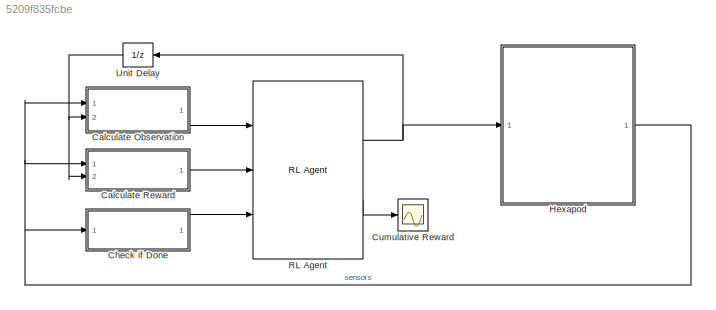
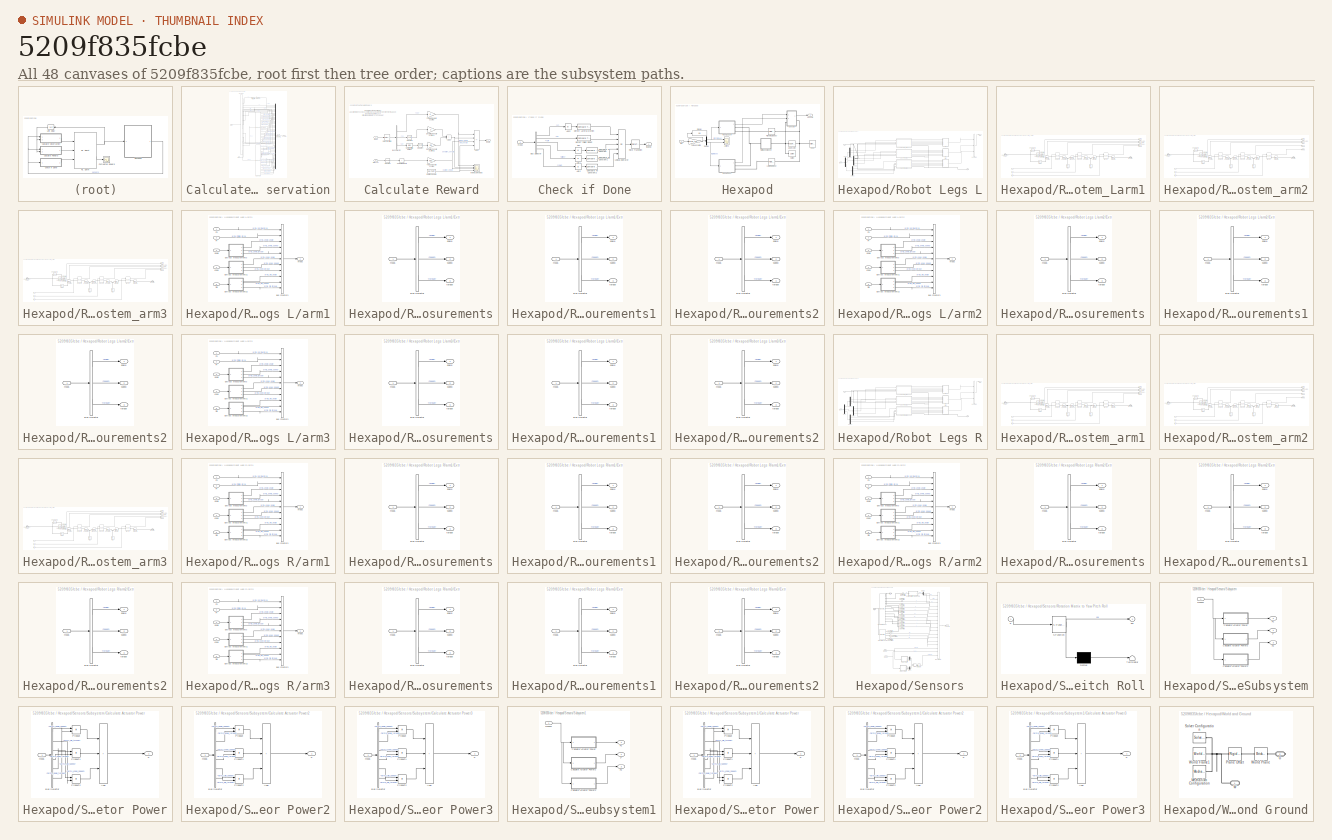
[diagram: thumbnail index - all 48 canvases of the model, root first then tree order]
MODEL slx_5209f835fcbe
KIND model
CONFIG AbsTol = auto
CONFIG EnableMultiTasking = off
CONFIG FixedStep = auto
CONFIG MaxStep = auto
CONFIG MinStep = auto
CONFIG RelTol = 1e-3
CONFIG SampleTimeConstraint = Unconstrained
CONFIG Solver = VariableStepAuto
CONFIG SolverName = VariableStepAuto
CONFIG StartTime = 0.0
CONFIG StopTime = 10.0
BLOCK [SubSystem] Calculate Observation
  Ports = [2, 1]
  RequestExecContextInheritance = off
BLOCK [BusSelector] Calculate Observation/Bus Selector
  OutputSignals = Y,Z,VX,VY,VZ,yaw,pitch,roll,wx,wy,wz,measL,measR
  Ports = [1, 13]
BLOCK [BusSelector] Calculate Observation/Bus Selector1
  OutputSignals = signal1.arm1_ankle_speed,signal1.arm1_ankle_torque,signal1.arm1_knee_speed,signal1.arm1_knee_torque,signal1.arm1_hip_speed,signal1.arm1_hip_torque,signal2.arm2_ankle_speed,signal2.arm2_ankle_torque,signal2.arm2_knee_speed,signal2.arm2_knee_torque,signal2.arm2_hip_speed,signal2.arm2_hip_torque,signal3.arm3_ankle_speed,signal3.arm3_ankle_torque,signal3.arm3_knee_speed,signal3.arm3_knee_torque,signal...<+40ch>
  Ports = [1, 18]
BLOCK [BusSelector] Calculate Observation/Bus Selector2
  OutputSignals = signal1.arm1_ankle_speed,signal1.arm1_ankle_torque,signal1.arm1_knee_speed,signal1.arm1_knee_torque,signal1.arm1_hip_speed,signal1.arm1_hip_torque,signal2.arm2_ankle_speed,signal2.arm2_ankle_torque,signal2.arm2_knee_speed,signal2.arm2_knee_torque,signal2.arm2_hip_speed,signal2.arm2_hip_torque,signal3.arm3_ankle_speed,signal3.arm3_ankle_torque,signal3.arm3_knee_speed,signal3.arm3_knee_torque,signal...<+40ch>
  Ports = [1, 18]
BLOCK [Mux] Calculate Observation/Mux
  DisplayOption = bar
  Inputs = 48
  Ports = [48, 1]
BLOCK [RateTransition] Calculate Observation/Rate Transition
BLOCK [Gain] Calculate Observation/Scale Height
  Gain = 1/0.05
BLOCK [Bias] Calculate Observation/Subtract Initial Height
  Bias = -init_height/100
  SaturateOnIntegerOverflow = off
BLOCK [Inport] Calculate Observation/meas
BLOCK [Outport] Calculate Observation/observation
  VectorParamsAs1DForOutWhenUnconnected = off
BLOCK [Inport] Calculate Observation/prevAct
  Port = 2
BLOCK [SubSystem] Calculate Reward
  Ports = [2, 1]
  RequestExecContextInheritance = off
BLOCK [Sum] Calculate Reward/Add1
  IconShape = rectangular
  Ports = [2, 1]
BLOCK [Sum] Calculate Reward/Add2
  IconShape = rectangular
  Inputs = +--+
  Ports = [4, 1]
BLOCK [BusSelector] Calculate Reward/Bus Selector
  OutputSignals = VX,Y,Z
  Ports = [1, 3]
BLOCK [Gain] Calculate Reward/Deviation Penalty Scaling Y
  Gain = 3
BLOCK [Gain] Calculate Reward/Deviation Penalty Scaling Z
  Gain = 50
BLOCK [Constant] Calculate Reward/Duration Reward
  Value = 25*Ts/Tf
BLOCK [Gain] Calculate Reward/Forward Reward Scaling
BLOCK [Scope] Calculate Reward/Individual Rewards
  Floating = off
  NumInputPorts = 4
  Ports = [4]
  ScopeSpecificationString = Simulink.scopes.TimeScopeBlockCfg('CurrentConfiguration', extmgr.ConfigurationSet(extmgr.Configuration('Core','General UI',true),extmgr.Configuration('Core','Source UI',true),extmgr.Configuration('Sources','WiredSimulink',true,'DataLoggingVariableName','ScopeData1'),extmgr.Configuration('Visuals','Time Domain',true,'SerializedDisplays',{struct('MinYLimReal','-0.10269','MaxYLimReal','0.92421','YLab...<+1411ch>
BLOCK [RateTransition] Calculate Reward/Rate Transition
  OutPortSampleTime = Ts
BLOCK [Math] Calculate Reward/Square2
  Operator = square
  Ports = [1, 1]
  SignedPower = on
BLOCK [Math] Calculate Reward/Square3
  Operator = square
  Ports = [1, 1]
  SignedPower = on
BLOCK [Math] Calculate Reward/Square4
  Operator = square
  Ports = [1, 1]
  SignedPower = on
BLOCK [Bias] Calculate Reward/Subtract Initial Height
  Bias = -init_height/100
  SaturateOnIntegerOverflow = off
BLOCK [Sum] Calculate Reward/Sum of Elements
  IconShape = rectangular
  Inputs = +
  Ports = [1, 1]
BLOCK [Gain] Calculate Reward/Torque Penalty Scaling
  Gain = 0.02
BLOCK [Inport] Calculate Reward/meas
BLOCK [Inport] Calculate Reward/prevAct
  Port = 2
BLOCK [Outport] Calculate Reward/reward
  VectorParamsAs1DForOutWhenUnconnected = off
BLOCK [SubSystem] Check if Done
  Ports = [1, 1]
  RequestExecContextInheritance = off
BLOCK [Abs] Check if Done/Abs
  SaturateOnIntegerOverflow = off
BLOCK [Abs] Check if Done/Abs1
  SaturateOnIntegerOverflow = off
BLOCK [Abs] Check if Done/Abs2
  SaturateOnIntegerOverflow = off
BLOCK [Abs] Check if Done/Abs3
  SaturateOnIntegerOverflow = off
BLOCK [BusSelector] Check if Done/Bus Selector
  OutputSignals = Y,Z,roll,pitch,yaw
  Ports = [1, 5]
BLOCK [Reference] Check if Done/Compare To Constant  REF=simulink/Logic and Bit
Operations/Compare
To Constant
  Ports = [1, 1]
  SourceBlock = simulink/Logic and Bit\nOperations/Compare\nTo Constant
  SourceProductBaseCode = SL
  SourceType = Compare To Constant
BLOCK [Reference] Check if Done/Compare To Constant1  REF=simulink/Logic and Bit
Operations/Compare
To Constant
  Ports = [1, 1]
  SourceBlock = simulink/Logic and Bit\nOperations/Compare\nTo Constant
  SourceProductBaseCode = SL
  SourceType = Compare To Constant
BLOCK [Reference] Check if Done/Compare To Constant2  REF=simulink/Logic and Bit
Operations/Compare
To Constant
  Ports = [1, 1]
  SourceBlock = simulink/Logic and Bit\nOperations/Compare\nTo Constant
  SourceProductBaseCode = SL
  SourceType = Compare To Constant
BLOCK [Reference] Check if Done/Detect Fallen Robot  REF=simulink/Logic and Bit
Operations/Compare
To Constant
  Ports = [1, 1]
  SourceBlock = simulink/Logic and Bit\nOperations/Compare\nTo Constant
  SourceProductBaseCode = SL
  SourceType = Compare To Constant
BLOCK [Reference] Check if Done/Detect Lateral Motion  REF=simulink/Logic and Bit
Operations/Compare
To Constant
  Ports = [1, 1]
  SourceBlock = simulink/Logic and Bit\nOperations/Compare\nTo Constant
  SourceProductBaseCode = SL
  SourceType = Compare To Constant
BLOCK [Logic] Check if Done/Logical Operator
  AllPortsSameDT = off
  Inputs = 5
  Operator = OR
  OutDataTypeStr = boolean
  Ports = [5, 1]
BLOCK [RateTransition] Check if Done/Rate Transition
BLOCK [Outport] Check if Done/isdone
  VectorParamsAs1DForOutWhenUnconnected = off
BLOCK [Inport] Check if Done/meas
BLOCK [Scope] Cumulative Reward
  Floating = off
  NumInputPorts = 1
  Ports = [1]
  ScopeSpecificationString = Simulink.scopes.TimeScopeBlockCfg('CurrentConfiguration', extmgr.ConfigurationSet(extmgr.Configuration('Core','General UI',true),extmgr.Configuration('Core','Source UI',true),extmgr.Configuration('Sources','WiredSimulink',true,'DataLoggingVariableName','ScopeData1'),extmgr.Configuration('Visuals','Time Domain',true,'SerializedDisplays',{struct('MinYLimReal','-21.13573','MaxYLimReal','190.22158','Y...<+1433ch>
BLOCK [SubSystem] Hexapod
  Ports = [1, 1]
  RequestExecContextInheritance = off
BLOCK [Reference] Hexapod/6-DOF Joint  REF=sm_lib/Joints/6-DOF Joint
  Ports = [0, 0, 0, 0, 0, 1, 1]
  SourceBlock = sm_lib/Joints/6-DOF Joint
  SourceProductBaseCode = MS
  SourceType = 6-DOF Joint
BLOCK [Scope] Hexapod/Actions
  Floating = off
  NumInputPorts = 2
  Ports = [2]
  ScopeSpecificationString = Simulink.scopes.TimeScopeBlockCfg('CurrentConfiguration', extmgr.ConfigurationSet(extmgr.Configuration('Core','General UI',true),extmgr.Configuration('Core','Source UI',true),extmgr.Configuration('Sources','WiredSimulink',true,'DataLoggingVariableName','ScopeData1'),extmgr.Configuration('Visuals','Time Domain',true,'SerializedDisplays',{struct('MinYLimReal','-3.75','MaxYLimReal','3.75','YLabelReal...<+2095ch>
BLOCK [Demux] Hexapod/Demux
  Outputs = 2
  Ports = [1, 2]
BLOCK [Display] Hexapod/Display
  Decimation = 1
  Ports = [1]
BLOCK [Reference] Hexapod/Left Arm1 to Body  REF=sm_lib/Frames and
Transforms/Rigid
Transform
  Ports = [0, 0, 0, 0, 0, 1, 1]
  SourceBlock = sm_lib/Frames and\nTransforms/Rigid\nTransform
  SourceProductBaseCode = MS
  SourceType = Rigid\nTransform
BLOCK [Reference] Hexapod/Right Arm1 to Body  REF=sm_lib/Frames and
Transforms/Rigid
Transform
  Ports = [0, 0, 0, 0, 0, 1, 1]
  SourceBlock = sm_lib/Frames and\nTransforms/Rigid\nTransform
  SourceProductBaseCode = MS
  SourceType = Rigid\nTransform
BLOCK [SubSystem] Hexapod/Robot Legs L
  Ports = [1, 1, 0, 0, 0, 0, 2]
  RequestExecContextInheritance = off
BLOCK [BusCreator] Hexapod/Robot Legs L/Bus Creator3
  DisplayOption = bar
  InheritFromInputs = on
  Inputs = 3
  Ports = [3, 1]
BLOCK [Demux] Hexapod/Robot Legs L/Demux
  Outputs = 3
  Ports = [1, 3]
BLOCK [Demux] Hexapod/Robot Legs L/Demux1
  Outputs = 3
  Ports = [1, 3]
BLOCK [Demux] Hexapod/Robot Legs L/Demux2
  Outputs = 3
  Ports = [1, 3]
BLOCK [Demux] Hexapod/Robot Legs L/Demux3
  Outputs = 3
  Ports = [1, 3]
BLOCK [PMIOPort] Hexapod/Robot Legs L/G
  Side = Right
BLOCK [PMIOPort] Hexapod/Robot Legs L/H
  Port = 2
  Side = Right
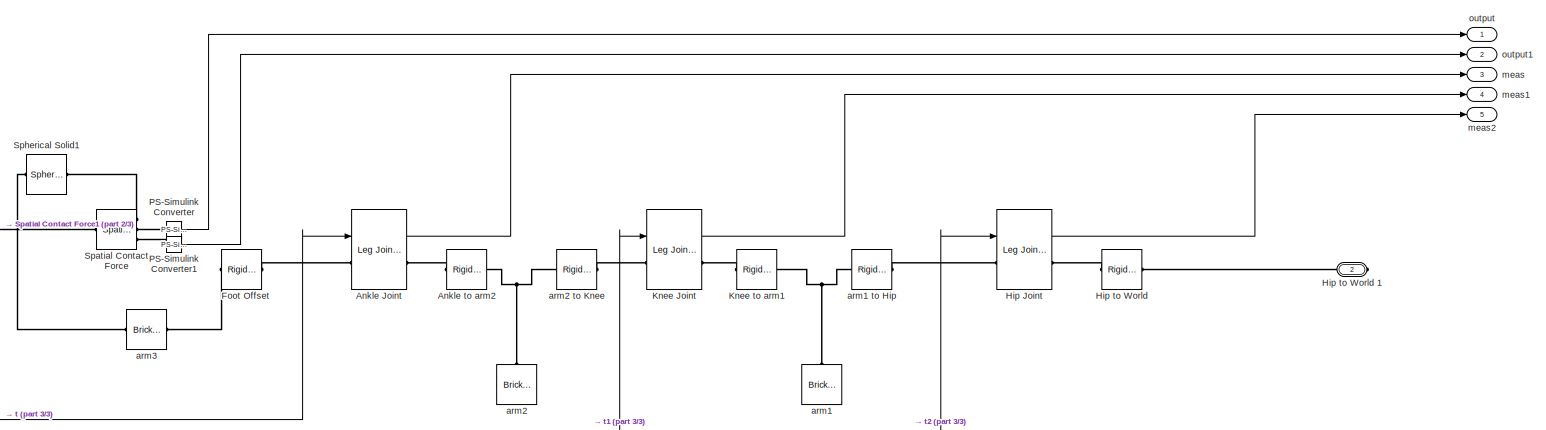
[diagram: Hexapod/Robot Legs L/Subsystem_Larm1 - part 1/3, most of the canvas]
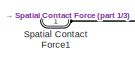
[diagram: Hexapod/Robot Legs L/Subsystem_Larm1 - part 2/3, middle left region]
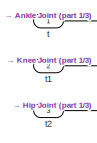
[diagram: Hexapod/Robot Legs L/Subsystem_Larm1 - part 3/3, bottom left region]
BLOCK [SubSystem] Hexapod/Robot Legs L/Subsystem_Larm1
  Ports = [3, 5, 0, 0, 0, 1, 1]
  RequestExecContextInheritance = off
BLOCK [Reference] Hexapod/Robot Legs L/Subsystem_Larm1/Ankle Joint  REF=walkingRobotUtils/Leg Joint with Limits
  Ports = [1, 1, 0, 0, 0, 1, 1]
  SourceBlock = walkingRobotUtils/Leg Joint with Limits
  SourceType = Leg Joint with Limits
BLOCK [Reference] Hexapod/Robot Legs L/Subsystem_Larm1/Ankle to arm2  REF=sm_lib/Frames and
Transforms/Rigid
Transform
  Ports = [0, 0, 0, 0, 0, 1, 1]
  SourceBlock = sm_lib/Frames and\nTransforms/Rigid\nTransform
  SourceProductBaseCode = MS
  SourceType = Rigid\nTransform
BLOCK [Reference] Hexapod/Robot Legs L/Subsystem_Larm1/Foot Offset  REF=sm_lib/Frames and
Transforms/Rigid
Transform
  Ports = [0, 0, 0, 0, 0, 1, 1]
  SourceBlock = sm_lib/Frames and\nTransforms/Rigid\nTransform
  SourceProductBaseCode = MS
  SourceType = Rigid\nTransform
BLOCK [Reference] Hexapod/Robot Legs L/Subsystem_Larm1/Hip Joint  REF=walkingRobotUtils/Leg Joint with Limits
  Ports = [1, 1, 0, 0, 0, 1, 1]
  SourceBlock = walkingRobotUtils/Leg Joint with Limits
  SourceType = Leg Joint with Limits
BLOCK [Reference] Hexapod/Robot Legs L/Subsystem_Larm1/Hip to World   REF=sm_lib/Frames and
Transforms/Rigid
Transform
  Ports = [0, 0, 0, 0, 0, 1, 1]
  SourceBlock = sm_lib/Frames and\nTransforms/Rigid\nTransform
  SourceProductBaseCode = MS
  SourceType = Rigid\nTransform
BLOCK [PMIOPort] Hexapod/Robot Legs L/Subsystem_Larm1/Hip to World 1
  Port = 2
  Side = Right
BLOCK [Reference] Hexapod/Robot Legs L/Subsystem_Larm1/Knee Joint  REF=walkingRobotUtils/Leg Joint with Limits
  Ports = [1, 1, 0, 0, 0, 1, 1]
  SourceBlock = walkingRobotUtils/Leg Joint with Limits
  SourceType = Leg Joint with Limits
BLOCK [Reference] Hexapod/Robot Legs L/Subsystem_Larm1/Knee to arm1  REF=sm_lib/Frames and
Transforms/Rigid
Transform
  Ports = [0, 0, 0, 0, 0, 1, 1]
  SourceBlock = sm_lib/Frames and\nTransforms/Rigid\nTransform
  SourceProductBaseCode = MS
  SourceType = Rigid\nTransform
BLOCK [Reference] Hexapod/Robot Legs L/Subsystem_Larm1/PS-Simulink Converter  REF=nesl_utility/PS-Simulink
Converter
  Ports = [0, 1, 0, 0, 0, 1]
  SourceBlock = nesl_utility/PS-Simulink\nConverter
  SourceProductBaseCode = MT,SS
  SourceType = PS-Simulink\nConverter
BLOCK [Reference] Hexapod/Robot Legs L/Subsystem_Larm1/PS-Simulink Converter1  REF=nesl_utility/PS-Simulink
Converter
  Ports = [0, 1, 0, 0, 0, 1]
  SourceBlock = nesl_utility/PS-Simulink\nConverter
  SourceProductBaseCode = MT,SS
  SourceType = PS-Simulink\nConverter
BLOCK [Reference] Hexapod/Robot Legs L/Subsystem_Larm1/Spatial Contact Force  REF=sm_lib/Forces and
Torques/Spatial
Contact Force
  Ports = [0, 0, 0, 0, 0, 1, 3]
  SourceBlock = sm_lib/Forces and\nTorques/Spatial\nContact Force
  SourceProductBaseCode = MS
  SourceType = Spatial\nContact Force
BLOCK [PMIOPort] Hexapod/Robot Legs L/Subsystem_Larm1/Spatial Contact Force1
  Side = Left
BLOCK [Reference] Hexapod/Robot Legs L/Subsystem_Larm1/Spherical Solid1  REF=sm_lib/Body Elements/Spherical Solid
  NameLocation = top
  Ports = [0, 0, 0, 0, 0, 1, 1]
  SourceBlock = sm_lib/Body Elements/Spherical Solid
  SourceProductBaseCode = MS
  SourceType = Spherical Solid
BLOCK [Reference] Hexapod/Robot Legs L/Subsystem_Larm1/arm1  REF=sm_lib/Body Elements/Brick Solid
  NameLocation = right
  Ports = [0, 0, 0, 0, 0, 0, 1]
  SourceBlock = sm_lib/Body Elements/Brick Solid
  SourceProductBaseCode = MS
  SourceType = Brick Solid
BLOCK [Reference] Hexapod/Robot Legs L/Subsystem_Larm1/arm1 to Hip  REF=sm_lib/Frames and
Transforms/Rigid
Transform
  Ports = [0, 0, 0, 0, 0, 1, 1]
  SourceBlock = sm_lib/Frames and\nTransforms/Rigid\nTransform
  SourceProductBaseCode = MS
  SourceType = Rigid\nTransform
BLOCK [Reference] Hexapod/Robot Legs L/Subsystem_Larm1/arm2  REF=sm_lib/Body Elements/Brick Solid
  NameLocation = right
  Ports = [0, 0, 0, 0, 0, 0, 1]
  SourceBlock = sm_lib/Body Elements/Brick Solid
  SourceProductBaseCode = MS
  SourceType = Brick Solid
BLOCK [Reference] Hexapod/Robot Legs L/Subsystem_Larm1/arm2 to Knee  REF=sm_lib/Frames and
Transforms/Rigid
Transform
  Ports = [0, 0, 0, 0, 0, 1, 1]
  SourceBlock = sm_lib/Frames and\nTransforms/Rigid\nTransform
  SourceProductBaseCode = MS
  SourceType = Rigid\nTransform
BLOCK [Reference] Hexapod/Robot Legs L/Subsystem_Larm1/arm3  REF=sm_lib/Body Elements/Brick Solid
  Ports = [0, 0, 0, 0, 0, 1, 1]
  SourceBlock = sm_lib/Body Elements/Brick Solid
  SourceProductBaseCode = MS
  SourceType = Brick Solid
BLOCK [Outport] Hexapod/Robot Legs L/Subsystem_Larm1/meas
  Port = 3
BLOCK [Outport] Hexapod/Robot Legs L/Subsystem_Larm1/meas1
  Port = 4
BLOCK [Outport] Hexapod/Robot Legs L/Subsystem_Larm1/meas2
  Port = 5
BLOCK [Outport] Hexapod/Robot Legs L/Subsystem_Larm1/output
BLOCK [Outport] Hexapod/Robot Legs L/Subsystem_Larm1/output1
  Port = 2
BLOCK [Inport] Hexapod/Robot Legs L/Subsystem_Larm1/t
BLOCK [Inport] Hexapod/Robot Legs L/Subsystem_Larm1/t1
  Port = 2
BLOCK [Inport] Hexapod/Robot Legs L/Subsystem_Larm1/t2
  Port = 3
BLOCK [SubSystem] Hexapod/Robot Legs L/Subsystem_arm2
  Ports = [3, 5, 0, 0, 0, 1, 1]
  RequestExecContextInheritance = off
BLOCK [Reference] Hexapod/Robot Legs L/Subsystem_arm2/Ankle Joint  REF=walkingRobotUtils/Leg Joint with Limits
  Ports = [1, 1, 0, 0, 0, 1, 1]
  SourceBlock = walkingRobotUtils/Leg Joint with Limits
  SourceType = Leg Joint with Limits
BLOCK [Reference] Hexapod/Robot Legs L/Subsystem_arm2/Ankle to arm2  REF=sm_lib/Frames and
Transforms/Rigid
Transform
  Ports = [0, 0, 0, 0, 0, 1, 1]
  SourceBlock = sm_lib/Frames and\nTransforms/Rigid\nTransform
  SourceProductBaseCode = MS
  SourceType = Rigid\nTransform
BLOCK [Reference] Hexapod/Robot Legs L/Subsystem_arm2/Foot Offset  REF=sm_lib/Frames and
Transforms/Rigid
Transform
  Ports = [0, 0, 0, 0, 0, 1, 1]
  SourceBlock = sm_lib/Frames and\nTransforms/Rigid\nTransform
  SourceProductBaseCode = MS
  SourceType = Rigid\nTransform
BLOCK [Reference] Hexapod/Robot Legs L/Subsystem_arm2/Hip Joint  REF=walkingRobotUtils/Leg Joint with Limits
  Ports = [1, 1, 0, 0, 0, 1, 1]
  SourceBlock = walkingRobotUtils/Leg Joint with Limits
  SourceType = Leg Joint with Limits
BLOCK [Reference] Hexapod/Robot Legs L/Subsystem_arm2/Hip to World   REF=sm_lib/Frames and
Transforms/Rigid
Transform
  Ports = [0, 0, 0, 0, 0, 1, 1]
  SourceBlock = sm_lib/Frames and\nTransforms/Rigid\nTransform
  SourceProductBaseCode = MS
  SourceType = Rigid\nTransform
BLOCK [PMIOPort] Hexapod/Robot Legs L/Subsystem_arm2/Hip to World 1
  Port = 2
  Side = Right
BLOCK [Reference] Hexapod/Robot Legs L/Subsystem_arm2/Knee Joint  REF=walkingRobotUtils/Leg Joint with Limits
  Ports = [1, 1, 0, 0, 0, 1, 1]
  SourceBlock = walkingRobotUtils/Leg Joint with Limits
  SourceType = Leg Joint with Limits
BLOCK [Reference] Hexapod/Robot Legs L/Subsystem_arm2/Knee to arm1  REF=sm_lib/Frames and
Transforms/Rigid
Transform
  Ports = [0, 0, 0, 0, 0, 1, 1]
  SourceBlock = sm_lib/Frames and\nTransforms/Rigid\nTransform
  SourceProductBaseCode = MS
  SourceType = Rigid\nTransform
BLOCK [Reference] Hexapod/Robot Legs L/Subsystem_arm2/PS-Simulink Converter  REF=nesl_utility/PS-Simulink
Converter
  Ports = [0, 1, 0, 0, 0, 1]
  SourceBlock = nesl_utility/PS-Simulink\nConverter
  SourceProductBaseCode = MT,SS
  SourceType = PS-Simulink\nConverter
BLOCK [Reference] Hexapod/Robot Legs L/Subsystem_arm2/PS-Simulink Converter1  REF=nesl_utility/PS-Simulink
Converter
  Ports = [0, 1, 0, 0, 0, 1]
  SourceBlock = nesl_utility/PS-Simulink\nConverter
  SourceProductBaseCode = MT,SS
  SourceType = PS-Simulink\nConverter
BLOCK [Reference] Hexapod/Robot Legs L/Subsystem_arm2/Spatial Contact Force  REF=sm_lib/Forces and
Torques/Spatial
Contact Force
  Ports = [0, 0, 0, 0, 0, 1, 3]
  SourceBlock = sm_lib/Forces and\nTorques/Spatial\nContact Force
  SourceProductBaseCode = MS
  SourceType = Spatial\nContact Force
BLOCK [PMIOPort] Hexapod/Robot Legs L/Subsystem_arm2/Spatial Contact Force2
  Side = Left
BLOCK [Reference] Hexapod/Robot Legs L/Subsystem_arm2/Spherical Solid1  REF=sm_lib/Body Elements/Spherical Solid
  NameLocation = top
  Ports = [0, 0, 0, 0, 0, 1, 1]
  SourceBlock = sm_lib/Body Elements/Spherical Solid
  SourceProductBaseCode = MS
  SourceType = Spherical Solid
BLOCK [Reference] Hexapod/Robot Legs L/Subsystem_arm2/arm1  REF=sm_lib/Body Elements/Brick Solid
  NameLocation = right
  Ports = [0, 0, 0, 0, 0, 0, 1]
  SourceBlock = sm_lib/Body Elements/Brick Solid
  SourceProductBaseCode = MS
  SourceType = Brick Solid
BLOCK [Reference] Hexapod/Robot Legs L/Subsystem_arm2/arm1 to Hip  REF=sm_lib/Frames and
Transforms/Rigid
Transform
  Ports = [0, 0, 0, 0, 0, 1, 1]
  SourceBlock = sm_lib/Frames and\nTransforms/Rigid\nTransform
  SourceProductBaseCode = MS
  SourceType = Rigid\nTransform
BLOCK [Reference] Hexapod/Robot Legs L/Subsystem_arm2/arm2  REF=sm_lib/Body Elements/Brick Solid
  NameLocation = right
  Ports = [0, 0, 0, 0, 0, 0, 1]
  SourceBlock = sm_lib/Body Elements/Brick Solid
  SourceProductBaseCode = MS
  SourceType = Brick Solid
BLOCK [Reference] Hexapod/Robot Legs L/Subsystem_arm2/arm2 to Knee  REF=sm_lib/Frames and
Transforms/Rigid
Transform
  Ports = [0, 0, 0, 0, 0, 1, 1]
  SourceBlock = sm_lib/Frames and\nTransforms/Rigid\nTransform
  SourceProductBaseCode = MS
  SourceType = Rigid\nTransform
BLOCK [Reference] Hexapod/Robot Legs L/Subsystem_arm2/arm3  REF=sm_lib/Body Elements/Brick Solid
  Ports = [0, 0, 0, 0, 0, 1, 1]
  SourceBlock = sm_lib/Body Elements/Brick Solid
  SourceProductBaseCode = MS
  SourceType = Brick Solid
BLOCK [Outport] Hexapod/Robot Legs L/Subsystem_arm2/meas
  Port = 3
BLOCK [Outport] Hexapod/Robot Legs L/Subsystem_arm2/meas1
  Port = 4
BLOCK [Outport] Hexapod/Robot Legs L/Subsystem_arm2/meas2
  Port = 5
BLOCK [Outport] Hexapod/Robot Legs L/Subsystem_arm2/output
BLOCK [Outport] Hexapod/Robot Legs L/Subsystem_arm2/output1
  Port = 2
BLOCK [Inport] Hexapod/Robot Legs L/Subsystem_arm2/t
BLOCK [Inport] Hexapod/Robot Legs L/Subsystem_arm2/t1
  Port = 2
BLOCK [Inport] Hexapod/Robot Legs L/Subsystem_arm2/t2
  Port = 3
BLOCK [SubSystem] Hexapod/Robot Legs L/Subsystem_arm3
  Ports = [3, 5, 0, 0, 0, 1, 1]
  RequestExecContextInheritance = off
BLOCK [Reference] Hexapod/Robot Legs L/Subsystem_arm3/Ankle Joint  REF=walkingRobotUtils/Leg Joint with Limits
  Ports = [1, 1, 0, 0, 0, 1, 1]
  SourceBlock = walkingRobotUtils/Leg Joint with Limits
  SourceType = Leg Joint with Limits
BLOCK [Reference] Hexapod/Robot Legs L/Subsystem_arm3/Ankle to arm2  REF=sm_lib/Frames and
Transforms/Rigid
Transform
  Ports = [0, 0, 0, 0, 0, 1, 1]
  SourceBlock = sm_lib/Frames and\nTransforms/Rigid\nTransform
  SourceProductBaseCode = MS
  SourceType = Rigid\nTransform
BLOCK [Reference] Hexapod/Robot Legs L/Subsystem_arm3/Foot Offset  REF=sm_lib/Frames and
Transforms/Rigid
Transform
  Ports = [0, 0, 0, 0, 0, 1, 1]
  SourceBlock = sm_lib/Frames and\nTransforms/Rigid\nTransform
  SourceProductBaseCode = MS
  SourceType = Rigid\nTransform
BLOCK [Reference] Hexapod/Robot Legs L/Subsystem_arm3/Hip Joint  REF=walkingRobotUtils/Leg Joint with Limits
  Ports = [1, 1, 0, 0, 0, 1, 1]
  SourceBlock = walkingRobotUtils/Leg Joint with Limits
  SourceType = Leg Joint with Limits
BLOCK [Reference] Hexapod/Robot Legs L/Subsystem_arm3/Hip to World   REF=sm_lib/Frames and
Transforms/Rigid
Transform
  Ports = [0, 0, 0, 0, 0, 1, 1]
  SourceBlock = sm_lib/Frames and\nTransforms/Rigid\nTransform
  SourceProductBaseCode = MS
  SourceType = Rigid\nTransform
BLOCK [PMIOPort] Hexapod/Robot Legs L/Subsystem_arm3/Hip to World 1
  Port = 2
  Side = Right
BLOCK [Reference] Hexapod/Robot Legs L/Subsystem_arm3/Knee Joint  REF=walkingRobotUtils/Leg Joint with Limits
  Ports = [1, 1, 0, 0, 0, 1, 1]
  SourceBlock = walkingRobotUtils/Leg Joint with Limits
  SourceType = Leg Joint with Limits
BLOCK [Reference] Hexapod/Robot Legs L/Subsystem_arm3/Knee to arm1  REF=sm_lib/Frames and
Transforms/Rigid
Transform
  Ports = [0, 0, 0, 0, 0, 1, 1]
  SourceBlock = sm_lib/Frames and\nTransforms/Rigid\nTransform
  SourceProductBaseCode = MS
  SourceType = Rigid\nTransform
BLOCK [Reference] Hexapod/Robot Legs L/Subsystem_arm3/PS-Simulink Converter  REF=nesl_utility/PS-Simulink
Converter
  Ports = [0, 1, 0, 0, 0, 1]
  SourceBlock = nesl_utility/PS-Simulink\nConverter
  SourceProductBaseCode = MT,SS
  SourceType = PS-Simulink\nConverter
BLOCK [Reference] Hexapod/Robot Legs L/Subsystem_arm3/PS-Simulink Converter1  REF=nesl_utility/PS-Simulink
Converter
  Ports = [0, 1, 0, 0, 0, 1]
  SourceBlock = nesl_utility/PS-Simulink\nConverter
  SourceProductBaseCode = MT,SS
  SourceType = PS-Simulink\nConverter
BLOCK [Reference] Hexapod/Robot Legs L/Subsystem_arm3/Spatial Contact Force  REF=sm_lib/Forces and
Torques/Spatial
Contact Force
  Ports = [0, 0, 0, 0, 0, 1, 3]
  SourceBlock = sm_lib/Forces and\nTorques/Spatial\nContact Force
  SourceProductBaseCode = MS
  SourceType = Spatial\nContact Force
BLOCK [PMIOPort] Hexapod/Robot Legs L/Subsystem_arm3/Spatial Contact Force3
  Side = Left
BLOCK [Reference] Hexapod/Robot Legs L/Subsystem_arm3/Spherical Solid1  REF=sm_lib/Body Elements/Spherical Solid
  NameLocation = top
  Ports = [0, 0, 0, 0, 0, 1, 1]
  SourceBlock = sm_lib/Body Elements/Spherical Solid
  SourceProductBaseCode = MS
  SourceType = Spherical Solid
BLOCK [Reference] Hexapod/Robot Legs L/Subsystem_arm3/arm1  REF=sm_lib/Body Elements/Brick Solid
  NameLocation = right
  Ports = [0, 0, 0, 0, 0, 0, 1]
  SourceBlock = sm_lib/Body Elements/Brick Solid
  SourceProductBaseCode = MS
  SourceType = Brick Solid
BLOCK [Reference] Hexapod/Robot Legs L/Subsystem_arm3/arm1 to Hip  REF=sm_lib/Frames and
Transforms/Rigid
Transform
  Ports = [0, 0, 0, 0, 0, 1, 1]
  SourceBlock = sm_lib/Frames and\nTransforms/Rigid\nTransform
  SourceProductBaseCode = MS
  SourceType = Rigid\nTransform
BLOCK [Reference] Hexapod/Robot Legs L/Subsystem_arm3/arm2  REF=sm_lib/Body Elements/Brick Solid
  NameLocation = right
  Ports = [0, 0, 0, 0, 0, 0, 1]
  SourceBlock = sm_lib/Body Elements/Brick Solid
  SourceProductBaseCode = MS
  SourceType = Brick Solid
BLOCK [Reference] Hexapod/Robot Legs L/Subsystem_arm3/arm2 to Knee  REF=sm_lib/Frames and
Transforms/Rigid
Transform
  Ports = [0, 0, 0, 0, 0, 1, 1]
  SourceBlock = sm_lib/Frames and\nTransforms/Rigid\nTransform
  SourceProductBaseCode = MS
  SourceType = Rigid\nTransform
BLOCK [Reference] Hexapod/Robot Legs L/Subsystem_arm3/arm3  REF=sm_lib/Body Elements/Brick Solid
  Ports = [0, 0, 0, 0, 0, 1, 1]
  SourceBlock = sm_lib/Body Elements/Brick Solid
  SourceProductBaseCode = MS
  SourceType = Brick Solid
BLOCK [Outport] Hexapod/Robot Legs L/Subsystem_arm3/meas
  Port = 3
BLOCK [Outport] Hexapod/Robot Legs L/Subsystem_arm3/meas1
  Port = 4
BLOCK [Outport] Hexapod/Robot Legs L/Subsystem_arm3/meas2
  Port = 5
BLOCK [Outport] Hexapod/Robot Legs L/Subsystem_arm3/output
BLOCK [Outport] Hexapod/Robot Legs L/Subsystem_arm3/output1
  Port = 2
BLOCK [Inport] Hexapod/Robot Legs L/Subsystem_arm3/t
BLOCK [Inport] Hexapod/Robot Legs L/Subsystem_arm3/t1
  Port = 2
BLOCK [Inport] Hexapod/Robot Legs L/Subsystem_arm3/t2
  Port = 3
BLOCK [SubSystem] Hexapod/Robot Legs L/arm1
  AncestorBlock = walkingRobotUtils/Package \nMeasurements 2D
  Ports = [5, 1]
  RequestExecContextInheritance = off
BLOCK [BusCreator] Hexapod/Robot Legs L/arm1/Bus Creator3
  DisplayOption = bar
  InheritFromInputs = on
  Inputs = 11
  Ports = [11, 1]
BLOCK [SubSystem] Hexapod/Robot Legs L/arm1/Extract Measurements
  Ports = [1, 3]
  RequestExecContextInheritance = off
BLOCK [BusSelector] Hexapod/Robot Legs L/arm1/Extract Measurements/Bus Selector
  OutputSignals = angle,speed,torque
  Ports = [1, 3]
BLOCK [Outport] Hexapod/Robot Legs L/arm1/Extract Measurements/angle
  VectorParamsAs1DForOutWhenUnconnected = off
BLOCK [Inport] Hexapod/Robot Legs L/arm1/Extract Measurements/meas
BLOCK [Outport] Hexapod/Robot Legs L/arm1/Extract Measurements/speed
  Port = 2
  VectorParamsAs1DForOutWhenUnconnected = off
BLOCK [Outport] Hexapod/Robot Legs L/arm1/Extract Measurements/torque
  Port = 3
  VectorParamsAs1DForOutWhenUnconnected = off
BLOCK [SubSystem] Hexapod/Robot Legs L/arm1/Extract Measurements1
  Ports = [1, 3]
  RequestExecContextInheritance = off
BLOCK [BusSelector] Hexapod/Robot Legs L/arm1/Extract Measurements1/Bus Selector
  OutputSignals = angle,speed,torque
  Ports = [1, 3]
BLOCK [Outport] Hexapod/Robot Legs L/arm1/Extract Measurements1/angle
  VectorParamsAs1DForOutWhenUnconnected = off
BLOCK [Inport] Hexapod/Robot Legs L/arm1/Extract Measurements1/meas
BLOCK [Outport] Hexapod/Robot Legs L/arm1/Extract Measurements1/speed
  Port = 2
  VectorParamsAs1DForOutWhenUnconnected = off
BLOCK [Outport] Hexapod/Robot Legs L/arm1/Extract Measurements1/torque
  Port = 3
  VectorParamsAs1DForOutWhenUnconnected = off
BLOCK [SubSystem] Hexapod/Robot Legs L/arm1/Extract Measurements2
  Ports = [1, 3]
  RequestExecContextInheritance = off
BLOCK [BusSelector] Hexapod/Robot Legs L/arm1/Extract Measurements2/Bus Selector
  OutputSignals = angle,speed,torque
  Ports = [1, 3]
BLOCK [Outport] Hexapod/Robot Legs L/arm1/Extract Measurements2/angle
  VectorParamsAs1DForOutWhenUnconnected = off
BLOCK [Inport] Hexapod/Robot Legs L/arm1/Extract Measurements2/meas
BLOCK [Outport] Hexapod/Robot Legs L/arm1/Extract Measurements2/speed
  Port = 2
  VectorParamsAs1DForOutWhenUnconnected = off
BLOCK [Outport] Hexapod/Robot Legs L/arm1/Extract Measurements2/torque
  Port = 3
  VectorParamsAs1DForOutWhenUnconnected = off
BLOCK [Inport] Hexapod/Robot Legs L/arm1/Ff
  Port = 2
BLOCK [Inport] Hexapod/Robot Legs L/arm1/Fn
BLOCK [Inport] Hexapod/Robot Legs L/arm1/ankle
  Port = 3
BLOCK [Inport] Hexapod/Robot Legs L/arm1/hip
  Port = 5
BLOCK [Inport] Hexapod/Robot Legs L/arm1/knee
  Port = 4
BLOCK [Outport] Hexapod/Robot Legs L/arm1/meas
  VectorParamsAs1DForOutWhenUnconnected = off
BLOCK [SubSystem] Hexapod/Robot Legs L/arm2
  AncestorBlock = walkingRobotUtils/Package \nMeasurements 2D
  Ports = [5, 1]
  RequestExecContextInheritance = off
BLOCK [BusCreator] Hexapod/Robot Legs L/arm2/Bus Creator3
  DisplayOption = bar
  InheritFromInputs = on
  Inputs = 11
  Ports = [11, 1]
BLOCK [SubSystem] Hexapod/Robot Legs L/arm2/Extract Measurements
  Ports = [1, 3]
  RequestExecContextInheritance = off
BLOCK [BusSelector] Hexapod/Robot Legs L/arm2/Extract Measurements/Bus Selector
  OutputSignals = angle,speed,torque
  Ports = [1, 3]
BLOCK [Outport] Hexapod/Robot Legs L/arm2/Extract Measurements/angle
  VectorParamsAs1DForOutWhenUnconnected = off
BLOCK [Inport] Hexapod/Robot Legs L/arm2/Extract Measurements/meas
BLOCK [Outport] Hexapod/Robot Legs L/arm2/Extract Measurements/speed
  Port = 2
  VectorParamsAs1DForOutWhenUnconnected = off
BLOCK [Outport] Hexapod/Robot Legs L/arm2/Extract Measurements/torque
  Port = 3
  VectorParamsAs1DForOutWhenUnconnected = off
BLOCK [SubSystem] Hexapod/Robot Legs L/arm2/Extract Measurements1
  Ports = [1, 3]
  RequestExecContextInheritance = off
BLOCK [BusSelector] Hexapod/Robot Legs L/arm2/Extract Measurements1/Bus Selector
  OutputSignals = angle,speed,torque
  Ports = [1, 3]
BLOCK [Outport] Hexapod/Robot Legs L/arm2/Extract Measurements1/angle
  VectorParamsAs1DForOutWhenUnconnected = off
BLOCK [Inport] Hexapod/Robot Legs L/arm2/Extract Measurements1/meas
BLOCK [Outport] Hexapod/Robot Legs L/arm2/Extract Measurements1/speed
  Port = 2
  VectorParamsAs1DForOutWhenUnconnected = off
BLOCK [Outport] Hexapod/Robot Legs L/arm2/Extract Measurements1/torque
  Port = 3
  VectorParamsAs1DForOutWhenUnconnected = off
BLOCK [SubSystem] Hexapod/Robot Legs L/arm2/Extract Measurements2
  Ports = [1, 3]
  RequestExecContextInheritance = off
BLOCK [BusSelector] Hexapod/Robot Legs L/arm2/Extract Measurements2/Bus Selector
  OutputSignals = angle,speed,torque
  Ports = [1, 3]
BLOCK [Outport] Hexapod/Robot Legs L/arm2/Extract Measurements2/angle
  VectorParamsAs1DForOutWhenUnconnected = off
BLOCK [Inport] Hexapod/Robot Legs L/arm2/Extract Measurements2/meas
BLOCK [Outport] Hexapod/Robot Legs L/arm2/Extract Measurements2/speed
  Port = 2
  VectorParamsAs1DForOutWhenUnconnected = off
BLOCK [Outport] Hexapod/Robot Legs L/arm2/Extract Measurements2/torque
  Port = 3
  VectorParamsAs1DForOutWhenUnconnected = off
BLOCK [Inport] Hexapod/Robot Legs L/arm2/Ff
  Port = 2
BLOCK [Inport] Hexapod/Robot Legs L/arm2/Fn
BLOCK [Inport] Hexapod/Robot Legs L/arm2/ankle
  Port = 3
BLOCK [Inport] Hexapod/Robot Legs L/arm2/hip
  Port = 5
BLOCK [Inport] Hexapod/Robot Legs L/arm2/knee
  Port = 4
BLOCK [Outport] Hexapod/Robot Legs L/arm2/meas
  VectorParamsAs1DForOutWhenUnconnected = off
BLOCK [SubSystem] Hexapod/Robot Legs L/arm3
  AncestorBlock = walkingRobotUtils/Package \nMeasurements 2D
  Ports = [5, 1]
  RequestExecContextInheritance = off
BLOCK [BusCreator] Hexapod/Robot Legs L/arm3/Bus Creator3
  DisplayOption = bar
  InheritFromInputs = on
  Inputs = 11
  Ports = [11, 1]
BLOCK [SubSystem] Hexapod/Robot Legs L/arm3/Extract Measurements
  Ports = [1, 3]
  RequestExecContextInheritance = off
BLOCK [BusSelector] Hexapod/Robot Legs L/arm3/Extract Measurements/Bus Selector
  OutputSignals = angle,speed,torque
  Ports = [1, 3]
BLOCK [Outport] Hexapod/Robot Legs L/arm3/Extract Measurements/angle
  VectorParamsAs1DForOutWhenUnconnected = off
BLOCK [Inport] Hexapod/Robot Legs L/arm3/Extract Measurements/meas
BLOCK [Outport] Hexapod/Robot Legs L/arm3/Extract Measurements/speed
  Port = 2
  VectorParamsAs1DForOutWhenUnconnected = off
BLOCK [Outport] Hexapod/Robot Legs L/arm3/Extract Measurements/torque
  Port = 3
  VectorParamsAs1DForOutWhenUnconnected = off
BLOCK [SubSystem] Hexapod/Robot Legs L/arm3/Extract Measurements1
  Ports = [1, 3]
  RequestExecContextInheritance = off
BLOCK [BusSelector] Hexapod/Robot Legs L/arm3/Extract Measurements1/Bus Selector
  OutputSignals = angle,speed,torque
  Ports = [1, 3]
BLOCK [Outport] Hexapod/Robot Legs L/arm3/Extract Measurements1/angle
  VectorParamsAs1DForOutWhenUnconnected = off
BLOCK [Inport] Hexapod/Robot Legs L/arm3/Extract Measurements1/meas
BLOCK [Outport] Hexapod/Robot Legs L/arm3/Extract Measurements1/speed
  Port = 2
  VectorParamsAs1DForOutWhenUnconnected = off
BLOCK [Outport] Hexapod/Robot Legs L/arm3/Extract Measurements1/torque
  Port = 3
  VectorParamsAs1DForOutWhenUnconnected = off
BLOCK [SubSystem] Hexapod/Robot Legs L/arm3/Extract Measurements2
  Ports = [1, 3]
  RequestExecContextInheritance = off
BLOCK [BusSelector] Hexapod/Robot Legs L/arm3/Extract Measurements2/Bus Selector
  OutputSignals = angle,speed,torque
  Ports = [1, 3]
BLOCK [Outport] Hexapod/Robot Legs L/arm3/Extract Measurements2/angle
  VectorParamsAs1DForOutWhenUnconnected = off
BLOCK [Inport] Hexapod/Robot Legs L/arm3/Extract Measurements2/meas
BLOCK [Outport] Hexapod/Robot Legs L/arm3/Extract Measurements2/speed
  Port = 2
  VectorParamsAs1DForOutWhenUnconnected = off
BLOCK [Outport] Hexapod/Robot Legs L/arm3/Extract Measurements2/torque
  Port = 3
  VectorParamsAs1DForOutWhenUnconnected = off
BLOCK [Inport] Hexapod/Robot Legs L/arm3/Ff
  Port = 2
BLOCK [Inport] Hexapod/Robot Legs L/arm3/Fn
BLOCK [Inport] Hexapod/Robot Legs L/arm3/ankle
  Port = 3
BLOCK [Inport] Hexapod/Robot Legs L/arm3/hip
  Port = 5
BLOCK [Inport] Hexapod/Robot Legs L/arm3/knee
  Port = 4
BLOCK [Outport] Hexapod/Robot Legs L/arm3/meas
  VectorParamsAs1DForOutWhenUnconnected = off
BLOCK [Outport] Hexapod/Robot Legs L/meas
  VectorParamsAs1DForOutWhenUnconnected = off
BLOCK [Inport] Hexapod/Robot Legs L/torques
BLOCK [SubSystem] Hexapod/Robot Legs R
  Ports = [1, 1, 0, 0, 0, 0, 2]
  RequestExecContextInheritance = off
BLOCK [BusCreator] Hexapod/Robot Legs R/Bus Creator3
  DisplayOption = bar
  InheritFromInputs = on
  Inputs = 3
  Ports = [3, 1]
BLOCK [Demux] Hexapod/Robot Legs R/Demux
  Outputs = 3
  Ports = [1, 3]
BLOCK [Demux] Hexapod/Robot Legs R/Demux1
  Outputs = 3
  Ports = [1, 3]
BLOCK [Demux] Hexapod/Robot Legs R/Demux2
  Outputs = 3
  Ports = [1, 3]
BLOCK [Demux] Hexapod/Robot Legs R/Demux3
  Outputs = 3
  Ports = [1, 3]
BLOCK [PMIOPort] Hexapod/Robot Legs R/G
  Side = Right
BLOCK [PMIOPort] Hexapod/Robot Legs R/H
  Port = 2
  Side = Right
BLOCK [SubSystem] Hexapod/Robot Legs R/Subsystem_arm1
  Ports = [3, 5, 0, 0, 0, 1, 1]
  RequestExecContextInheritance = off
BLOCK [Reference] Hexapod/Robot Legs R/Subsystem_arm1/Ankle Joint  REF=walkingRobotUtils/Leg Joint with Limits
  Ports = [1, 1, 0, 0, 0, 1, 1]
  SourceBlock = walkingRobotUtils/Leg Joint with Limits
  SourceType = Leg Joint with Limits
BLOCK [Reference] Hexapod/Robot Legs R/Subsystem_arm1/Ankle to arm2  REF=sm_lib/Frames and
Transforms/Rigid
Transform
  Ports = [0, 0, 0, 0, 0, 1, 1]
  SourceBlock = sm_lib/Frames and\nTransforms/Rigid\nTransform
  SourceProductBaseCode = MS
  SourceType = Rigid\nTransform
BLOCK [Reference] Hexapod/Robot Legs R/Subsystem_arm1/Foot Offset  REF=sm_lib/Frames and
Transforms/Rigid
Transform
  Ports = [0, 0, 0, 0, 0, 1, 1]
  SourceBlock = sm_lib/Frames and\nTransforms/Rigid\nTransform
  SourceProductBaseCode = MS
  SourceType = Rigid\nTransform
BLOCK [Reference] Hexapod/Robot Legs R/Subsystem_arm1/Hip Joint  REF=walkingRobotUtils/Leg Joint with Limits
  Ports = [1, 1, 0, 0, 0, 1, 1]
  SourceBlock = walkingRobotUtils/Leg Joint with Limits
  SourceType = Leg Joint with Limits
BLOCK [Reference] Hexapod/Robot Legs R/Subsystem_arm1/Hip to World   REF=sm_lib/Frames and
Transforms/Rigid
Transform
  Ports = [0, 0, 0, 0, 0, 1, 1]
  SourceBlock = sm_lib/Frames and\nTransforms/Rigid\nTransform
  SourceProductBaseCode = MS
  SourceType = Rigid\nTransform
BLOCK [PMIOPort] Hexapod/Robot Legs R/Subsystem_arm1/Hip to World 1
  Port = 2
  Side = Right
BLOCK [Reference] Hexapod/Robot Legs R/Subsystem_arm1/Knee Joint  REF=walkingRobotUtils/Leg Joint with Limits
  Ports = [1, 1, 0, 0, 0, 1, 1]
  SourceBlock = walkingRobotUtils/Leg Joint with Limits
  SourceType = Leg Joint with Limits
BLOCK [Reference] Hexapod/Robot Legs R/Subsystem_arm1/Knee to arm1  REF=sm_lib/Frames and
Transforms/Rigid
Transform
  Ports = [0, 0, 0, 0, 0, 1, 1]
  SourceBlock = sm_lib/Frames and\nTransforms/Rigid\nTransform
  SourceProductBaseCode = MS
  SourceType = Rigid\nTransform
BLOCK [Reference] Hexapod/Robot Legs R/Subsystem_arm1/PS-Simulink Converter  REF=nesl_utility/PS-Simulink
Converter
  Ports = [0, 1, 0, 0, 0, 1]
  SourceBlock = nesl_utility/PS-Simulink\nConverter
  SourceProductBaseCode = MT,SS
  SourceType = PS-Simulink\nConverter
BLOCK [Reference] Hexapod/Robot Legs R/Subsystem_arm1/PS-Simulink Converter1  REF=nesl_utility/PS-Simulink
Converter
  Ports = [0, 1, 0, 0, 0, 1]
  SourceBlock = nesl_utility/PS-Simulink\nConverter
  SourceProductBaseCode = MT,SS
  SourceType = PS-Simulink\nConverter
BLOCK [Reference] Hexapod/Robot Legs R/Subsystem_arm1/Spatial Contact Force  REF=sm_lib/Forces and
Torques/Spatial
Contact Force
  Ports = [0, 0, 0, 0, 0, 1, 3]
  SourceBlock = sm_lib/Forces and\nTorques/Spatial\nContact Force
  SourceProductBaseCode = MS
  SourceType = Spatial\nContact Force
BLOCK [PMIOPort] Hexapod/Robot Legs R/Subsystem_arm1/Spatial Contact Force1
  Side = Left
BLOCK [Reference] Hexapod/Robot Legs R/Subsystem_arm1/Spherical Solid1  REF=sm_lib/Body Elements/Spherical Solid
  NameLocation = top
  Ports = [0, 0, 0, 0, 0, 1, 1]
  SourceBlock = sm_lib/Body Elements/Spherical Solid
  SourceProductBaseCode = MS
  SourceType = Spherical Solid
BLOCK [Reference] Hexapod/Robot Legs R/Subsystem_arm1/arm1  REF=sm_lib/Body Elements/Brick Solid
  NameLocation = right
  Ports = [0, 0, 0, 0, 0, 0, 1]
  SourceBlock = sm_lib/Body Elements/Brick Solid
  SourceProductBaseCode = MS
  SourceType = Brick Solid
BLOCK [Reference] Hexapod/Robot Legs R/Subsystem_arm1/arm1 to Hip  REF=sm_lib/Frames and
Transforms/Rigid
Transform
  Ports = [0, 0, 0, 0, 0, 1, 1]
  SourceBlock = sm_lib/Frames and\nTransforms/Rigid\nTransform
  SourceProductBaseCode = MS
  SourceType = Rigid\nTransform
BLOCK [Reference] Hexapod/Robot Legs R/Subsystem_arm1/arm2  REF=sm_lib/Body Elements/Brick Solid
  NameLocation = right
  Ports = [0, 0, 0, 0, 0, 0, 1]
  SourceBlock = sm_lib/Body Elements/Brick Solid
  SourceProductBaseCode = MS
  SourceType = Brick Solid
BLOCK [Reference] Hexapod/Robot Legs R/Subsystem_arm1/arm2 to Knee  REF=sm_lib/Frames and
Transforms/Rigid
Transform
  Ports = [0, 0, 0, 0, 0, 1, 1]
  SourceBlock = sm_lib/Frames and\nTransforms/Rigid\nTransform
  SourceProductBaseCode = MS
  SourceType = Rigid\nTransform
BLOCK [Reference] Hexapod/Robot Legs R/Subsystem_arm1/arm3  REF=sm_lib/Body Elements/Brick Solid
  Ports = [0, 0, 0, 0, 0, 1, 1]
  SourceBlock = sm_lib/Body Elements/Brick Solid
  SourceProductBaseCode = MS
  SourceType = Brick Solid
BLOCK [Outport] Hexapod/Robot Legs R/Subsystem_arm1/meas
  Port = 3
BLOCK [Outport] Hexapod/Robot Legs R/Subsystem_arm1/meas1
  Port = 4
BLOCK [Outport] Hexapod/Robot Legs R/Subsystem_arm1/meas2
  Port = 5
BLOCK [Outport] Hexapod/Robot Legs R/Subsystem_arm1/output
BLOCK [Outport] Hexapod/Robot Legs R/Subsystem_arm1/output1
  Port = 2
BLOCK [Inport] Hexapod/Robot Legs R/Subsystem_arm1/t
BLOCK [Inport] Hexapod/Robot Legs R/Subsystem_arm1/t1
  Port = 2
BLOCK [Inport] Hexapod/Robot Legs R/Subsystem_arm1/t2
  Port = 3
BLOCK [SubSystem] Hexapod/Robot Legs R/Subsystem_arm2
  Ports = [3, 5, 0, 0, 0, 1, 1]
  RequestExecContextInheritance = off
BLOCK [Reference] Hexapod/Robot Legs R/Subsystem_arm2/Ankle Joint  REF=walkingRobotUtils/Leg Joint with Limits
  Ports = [1, 1, 0, 0, 0, 1, 1]
  SourceBlock = walkingRobotUtils/Leg Joint with Limits
  SourceType = Leg Joint with Limits
BLOCK [Reference] Hexapod/Robot Legs R/Subsystem_arm2/Ankle to arm2  REF=sm_lib/Frames and
Transforms/Rigid
Transform
  Ports = [0, 0, 0, 0, 0, 1, 1]
  SourceBlock = sm_lib/Frames and\nTransforms/Rigid\nTransform
  SourceProductBaseCode = MS
  SourceType = Rigid\nTransform
BLOCK [Reference] Hexapod/Robot Legs R/Subsystem_arm2/Foot Offset  REF=sm_lib/Frames and
Transforms/Rigid
Transform
  Ports = [0, 0, 0, 0, 0, 1, 1]
  SourceBlock = sm_lib/Frames and\nTransforms/Rigid\nTransform
  SourceProductBaseCode = MS
  SourceType = Rigid\nTransform
BLOCK [Reference] Hexapod/Robot Legs R/Subsystem_arm2/Hip Joint  REF=walkingRobotUtils/Leg Joint with Limits
  Ports = [1, 1, 0, 0, 0, 1, 1]
  SourceBlock = walkingRobotUtils/Leg Joint with Limits
  SourceType = Leg Joint with Limits
BLOCK [PMIOPort] Hexapod/Robot Legs R/Subsystem_arm2/Hip to World 1
  Port = 2
  Side = Right
BLOCK [Reference] Hexapod/Robot Legs R/Subsystem_arm2/Hip to World 2  REF=sm_lib/Frames and
Transforms/Rigid
Transform
  Ports = [0, 0, 0, 0, 0, 1, 1]
  SourceBlock = sm_lib/Frames and\nTransforms/Rigid\nTransform
  SourceProductBaseCode = MS
  SourceType = Rigid\nTransform
BLOCK [Reference] Hexapod/Robot Legs R/Subsystem_arm2/Knee Joint  REF=walkingRobotUtils/Leg Joint with Limits
  Ports = [1, 1, 0, 0, 0, 1, 1]
  SourceBlock = walkingRobotUtils/Leg Joint with Limits
  SourceType = Leg Joint with Limits
BLOCK [Reference] Hexapod/Robot Legs R/Subsystem_arm2/Knee to arm1  REF=sm_lib/Frames and
Transforms/Rigid
Transform
  Ports = [0, 0, 0, 0, 0, 1, 1]
  SourceBlock = sm_lib/Frames and\nTransforms/Rigid\nTransform
  SourceProductBaseCode = MS
  SourceType = Rigid\nTransform
BLOCK [Reference] Hexapod/Robot Legs R/Subsystem_arm2/PS-Simulink Converter  REF=nesl_utility/PS-Simulink
Converter
  Ports = [0, 1, 0, 0, 0, 1]
  SourceBlock = nesl_utility/PS-Simulink\nConverter
  SourceProductBaseCode = MT,SS
  SourceType = PS-Simulink\nConverter
BLOCK [Reference] Hexapod/Robot Legs R/Subsystem_arm2/PS-Simulink Converter1  REF=nesl_utility/PS-Simulink
Converter
  Ports = [0, 1, 0, 0, 0, 1]
  SourceBlock = nesl_utility/PS-Simulink\nConverter
  SourceProductBaseCode = MT,SS
  SourceType = PS-Simulink\nConverter
BLOCK [Reference] Hexapod/Robot Legs R/Subsystem_arm2/Spatial Contact Force  REF=sm_lib/Forces and
Torques/Spatial
Contact Force
  Ports = [0, 0, 0, 0, 0, 1, 3]
  SourceBlock = sm_lib/Forces and\nTorques/Spatial\nContact Force
  SourceProductBaseCode = MS
  SourceType = Spatial\nContact Force
BLOCK [PMIOPort] Hexapod/Robot Legs R/Subsystem_arm2/Spatial Contact Force2
  Side = Left
BLOCK [Reference] Hexapod/Robot Legs R/Subsystem_arm2/Spherical Solid1  REF=sm_lib/Body Elements/Spherical Solid
  NameLocation = top
  Ports = [0, 0, 0, 0, 0, 1, 1]
  SourceBlock = sm_lib/Body Elements/Spherical Solid
  SourceProductBaseCode = MS
  SourceType = Spherical Solid
BLOCK [Reference] Hexapod/Robot Legs R/Subsystem_arm2/arm1  REF=sm_lib/Body Elements/Brick Solid
  NameLocation = right
  Ports = [0, 0, 0, 0, 0, 0, 1]
  SourceBlock = sm_lib/Body Elements/Brick Solid
  SourceProductBaseCode = MS
  SourceType = Brick Solid
BLOCK [Reference] Hexapod/Robot Legs R/Subsystem_arm2/arm1 to Hip  REF=sm_lib/Frames and
Transforms/Rigid
Transform
  Ports = [0, 0, 0, 0, 0, 1, 1]
  SourceBlock = sm_lib/Frames and\nTransforms/Rigid\nTransform
  SourceProductBaseCode = MS
  SourceType = Rigid\nTransform
BLOCK [Reference] Hexapod/Robot Legs R/Subsystem_arm2/arm2  REF=sm_lib/Body Elements/Brick Solid
  NameLocation = right
  Ports = [0, 0, 0, 0, 0, 0, 1]
  SourceBlock = sm_lib/Body Elements/Brick Solid
  SourceProductBaseCode = MS
  SourceType = Brick Solid
BLOCK [Reference] Hexapod/Robot Legs R/Subsystem_arm2/arm2 to Knee  REF=sm_lib/Frames and
Transforms/Rigid
Transform
  Ports = [0, 0, 0, 0, 0, 1, 1]
  SourceBlock = sm_lib/Frames and\nTransforms/Rigid\nTransform
  SourceProductBaseCode = MS
  SourceType = Rigid\nTransform
BLOCK [Reference] Hexapod/Robot Legs R/Subsystem_arm2/arm3  REF=sm_lib/Body Elements/Brick Solid
  Ports = [0, 0, 0, 0, 0, 1, 1]
  SourceBlock = sm_lib/Body Elements/Brick Solid
  SourceProductBaseCode = MS
  SourceType = Brick Solid
BLOCK [Outport] Hexapod/Robot Legs R/Subsystem_arm2/meas
  Port = 3
BLOCK [Outport] Hexapod/Robot Legs R/Subsystem_arm2/meas1
  Port = 4
BLOCK [Outport] Hexapod/Robot Legs R/Subsystem_arm2/meas2
  Port = 5
BLOCK [Outport] Hexapod/Robot Legs R/Subsystem_arm2/output
BLOCK [Outport] Hexapod/Robot Legs R/Subsystem_arm2/output1
  Port = 2
BLOCK [Inport] Hexapod/Robot Legs R/Subsystem_arm2/t
BLOCK [Inport] Hexapod/Robot Legs R/Subsystem_arm2/t1
  Port = 2
BLOCK [Inport] Hexapod/Robot Legs R/Subsystem_arm2/t2
  Port = 3
BLOCK [SubSystem] Hexapod/Robot Legs R/Subsystem_arm3
  Ports = [3, 5, 0, 0, 0, 1, 1]
  RequestExecContextInheritance = off
BLOCK [Reference] Hexapod/Robot Legs R/Subsystem_arm3/Ankle Joint  REF=walkingRobotUtils/Leg Joint with Limits
  Ports = [1, 1, 0, 0, 0, 1, 1]
  SourceBlock = walkingRobotUtils/Leg Joint with Limits
  SourceType = Leg Joint with Limits
BLOCK [Reference] Hexapod/Robot Legs R/Subsystem_arm3/Ankle to arm2  REF=sm_lib/Frames and
Transforms/Rigid
Transform
  Ports = [0, 0, 0, 0, 0, 1, 1]
  SourceBlock = sm_lib/Frames and\nTransforms/Rigid\nTransform
  SourceProductBaseCode = MS
  SourceType = Rigid\nTransform
BLOCK [Reference] Hexapod/Robot Legs R/Subsystem_arm3/Foot Offset  REF=sm_lib/Frames and
Transforms/Rigid
Transform
  Ports = [0, 0, 0, 0, 0, 1, 1]
  SourceBlock = sm_lib/Frames and\nTransforms/Rigid\nTransform
  SourceProductBaseCode = MS
  SourceType = Rigid\nTransform
BLOCK [Reference] Hexapod/Robot Legs R/Subsystem_arm3/Hip Joint  REF=walkingRobotUtils/Leg Joint with Limits
  Ports = [1, 1, 0, 0, 0, 1, 1]
  SourceBlock = walkingRobotUtils/Leg Joint with Limits
  SourceType = Leg Joint with Limits
BLOCK [Reference] Hexapod/Robot Legs R/Subsystem_arm3/Hip to World   REF=sm_lib/Frames and
Transforms/Rigid
Transform
  Ports = [0, 0, 0, 0, 0, 1, 1]
  SourceBlock = sm_lib/Frames and\nTransforms/Rigid\nTransform
  SourceProductBaseCode = MS
  SourceType = Rigid\nTransform
BLOCK [PMIOPort] Hexapod/Robot Legs R/Subsystem_arm3/Hip to World 1
  Port = 2
  Side = Right
BLOCK [Reference] Hexapod/Robot Legs R/Subsystem_arm3/Knee Joint  REF=walkingRobotUtils/Leg Joint with Limits
  Ports = [1, 1, 0, 0, 0, 1, 1]
  SourceBlock = walkingRobotUtils/Leg Joint with Limits
  SourceType = Leg Joint with Limits
BLOCK [Reference] Hexapod/Robot Legs R/Subsystem_arm3/Knee to arm1  REF=sm_lib/Frames and
Transforms/Rigid
Transform
  Ports = [0, 0, 0, 0, 0, 1, 1]
  SourceBlock = sm_lib/Frames and\nTransforms/Rigid\nTransform
  SourceProductBaseCode = MS
  SourceType = Rigid\nTransform
BLOCK [Reference] Hexapod/Robot Legs R/Subsystem_arm3/PS-Simulink Converter  REF=nesl_utility/PS-Simulink
Converter
  Ports = [0, 1, 0, 0, 0, 1]
  SourceBlock = nesl_utility/PS-Simulink\nConverter
  SourceProductBaseCode = MT,SS
  SourceType = PS-Simulink\nConverter
BLOCK [Reference] Hexapod/Robot Legs R/Subsystem_arm3/PS-Simulink Converter1  REF=nesl_utility/PS-Simulink
Converter
  Ports = [0, 1, 0, 0, 0, 1]
  SourceBlock = nesl_utility/PS-Simulink\nConverter
  SourceProductBaseCode = MT,SS
  SourceType = PS-Simulink\nConverter
BLOCK [Reference] Hexapod/Robot Legs R/Subsystem_arm3/Spatial Contact Force  REF=sm_lib/Forces and
Torques/Spatial
Contact Force
  Ports = [0, 0, 0, 0, 0, 1, 3]
  SourceBlock = sm_lib/Forces and\nTorques/Spatial\nContact Force
  SourceProductBaseCode = MS
  SourceType = Spatial\nContact Force
BLOCK [PMIOPort] Hexapod/Robot Legs R/Subsystem_arm3/Spatial Contact Force3
  Side = Left
BLOCK [Reference] Hexapod/Robot Legs R/Subsystem_arm3/Spherical Solid1  REF=sm_lib/Body Elements/Spherical Solid
  NameLocation = top
  Ports = [0, 0, 0, 0, 0, 1, 1]
  SourceBlock = sm_lib/Body Elements/Spherical Solid
  SourceProductBaseCode = MS
  SourceType = Spherical Solid
BLOCK [Reference] Hexapod/Robot Legs R/Subsystem_arm3/arm1  REF=sm_lib/Body Elements/Brick Solid
  NameLocation = right
  Ports = [0, 0, 0, 0, 0, 0, 1]
  SourceBlock = sm_lib/Body Elements/Brick Solid
  SourceProductBaseCode = MS
  SourceType = Brick Solid
BLOCK [Reference] Hexapod/Robot Legs R/Subsystem_arm3/arm1 to Hip  REF=sm_lib/Frames and
Transforms/Rigid
Transform
  Ports = [0, 0, 0, 0, 0, 1, 1]
  SourceBlock = sm_lib/Frames and\nTransforms/Rigid\nTransform
  SourceProductBaseCode = MS
  SourceType = Rigid\nTransform
BLOCK [Reference] Hexapod/Robot Legs R/Subsystem_arm3/arm2  REF=sm_lib/Body Elements/Brick Solid
  NameLocation = right
  Ports = [0, 0, 0, 0, 0, 0, 1]
  SourceBlock = sm_lib/Body Elements/Brick Solid
  SourceProductBaseCode = MS
  SourceType = Brick Solid
BLOCK [Reference] Hexapod/Robot Legs R/Subsystem_arm3/arm2 to Knee  REF=sm_lib/Frames and
Transforms/Rigid
Transform
  Ports = [0, 0, 0, 0, 0, 1, 1]
  SourceBlock = sm_lib/Frames and\nTransforms/Rigid\nTransform
  SourceProductBaseCode = MS
  SourceType = Rigid\nTransform
BLOCK [Reference] Hexapod/Robot Legs R/Subsystem_arm3/arm3  REF=sm_lib/Body Elements/Brick Solid
  Ports = [0, 0, 0, 0, 0, 1, 1]
  SourceBlock = sm_lib/Body Elements/Brick Solid
  SourceProductBaseCode = MS
  SourceType = Brick Solid
BLOCK [Outport] Hexapod/Robot Legs R/Subsystem_arm3/meas
  Port = 3
BLOCK [Outport] Hexapod/Robot Legs R/Subsystem_arm3/meas1
  Port = 4
BLOCK [Outport] Hexapod/Robot Legs R/Subsystem_arm3/meas2
  Port = 5
BLOCK [Outport] Hexapod/Robot Legs R/Subsystem_arm3/output
BLOCK [Outport] Hexapod/Robot Legs R/Subsystem_arm3/output1
  Port = 2
BLOCK [Inport] Hexapod/Robot Legs R/Subsystem_arm3/t
BLOCK [Inport] Hexapod/Robot Legs R/Subsystem_arm3/t1
  Port = 2
BLOCK [Inport] Hexapod/Robot Legs R/Subsystem_arm3/t2
  Port = 3
BLOCK [SubSystem] Hexapod/Robot Legs R/arm1
  AncestorBlock = walkingRobotUtils/Package \nMeasurements 2D
  Ports = [5, 1]
  RequestExecContextInheritance = off
BLOCK [BusCreator] Hexapod/Robot Legs R/arm1/Bus Creator3
  DisplayOption = bar
  InheritFromInputs = on
  Inputs = 11
  Ports = [11, 1]
BLOCK [SubSystem] Hexapod/Robot Legs R/arm1/Extract Measurements
  Ports = [1, 3]
  RequestExecContextInheritance = off
BLOCK [BusSelector] Hexapod/Robot Legs R/arm1/Extract Measurements/Bus Selector
  OutputSignals = angle,speed,torque
  Ports = [1, 3]
BLOCK [Outport] Hexapod/Robot Legs R/arm1/Extract Measurements/angle
  VectorParamsAs1DForOutWhenUnconnected = off
BLOCK [Inport] Hexapod/Robot Legs R/arm1/Extract Measurements/meas
BLOCK [Outport] Hexapod/Robot Legs R/arm1/Extract Measurements/speed
  Port = 2
  VectorParamsAs1DForOutWhenUnconnected = off
BLOCK [Outport] Hexapod/Robot Legs R/arm1/Extract Measurements/torque
  Port = 3
  VectorParamsAs1DForOutWhenUnconnected = off
BLOCK [SubSystem] Hexapod/Robot Legs R/arm1/Extract Measurements1
  Ports = [1, 3]
  RequestExecContextInheritance = off
BLOCK [BusSelector] Hexapod/Robot Legs R/arm1/Extract Measurements1/Bus Selector
  OutputSignals = angle,speed,torque
  Ports = [1, 3]
BLOCK [Outport] Hexapod/Robot Legs R/arm1/Extract Measurements1/angle
  VectorParamsAs1DForOutWhenUnconnected = off
BLOCK [Inport] Hexapod/Robot Legs R/arm1/Extract Measurements1/meas
BLOCK [Outport] Hexapod/Robot Legs R/arm1/Extract Measurements1/speed
  Port = 2
  VectorParamsAs1DForOutWhenUnconnected = off
BLOCK [Outport] Hexapod/Robot Legs R/arm1/Extract Measurements1/torque
  Port = 3
  VectorParamsAs1DForOutWhenUnconnected = off
BLOCK [SubSystem] Hexapod/Robot Legs R/arm1/Extract Measurements2
  Ports = [1, 3]
  RequestExecContextInheritance = off
BLOCK [BusSelector] Hexapod/Robot Legs R/arm1/Extract Measurements2/Bus Selector
  OutputSignals = angle,speed,torque
  Ports = [1, 3]
BLOCK [Outport] Hexapod/Robot Legs R/arm1/Extract Measurements2/angle
  VectorParamsAs1DForOutWhenUnconnected = off
BLOCK [Inport] Hexapod/Robot Legs R/arm1/Extract Measurements2/meas
BLOCK [Outport] Hexapod/Robot Legs R/arm1/Extract Measurements2/speed
  Port = 2
  VectorParamsAs1DForOutWhenUnconnected = off
BLOCK [Outport] Hexapod/Robot Legs R/arm1/Extract Measurements2/torque
  Port = 3
  VectorParamsAs1DForOutWhenUnconnected = off
BLOCK [Inport] Hexapod/Robot Legs R/arm1/Ff
  Port = 2
BLOCK [Inport] Hexapod/Robot Legs R/arm1/Fn
BLOCK [Inport] Hexapod/Robot Legs R/arm1/ankle
  Port = 3
BLOCK [Inport] Hexapod/Robot Legs R/arm1/hip
  Port = 5
BLOCK [Inport] Hexapod/Robot Legs R/arm1/knee
  Port = 4
BLOCK [Outport] Hexapod/Robot Legs R/arm1/meas
  VectorParamsAs1DForOutWhenUnconnected = off
BLOCK [SubSystem] Hexapod/Robot Legs R/arm2
  AncestorBlock = walkingRobotUtils/Package \nMeasurements 2D
  Ports = [5, 1]
  RequestExecContextInheritance = off
BLOCK [BusCreator] Hexapod/Robot Legs R/arm2/Bus Creator3
  DisplayOption = bar
  InheritFromInputs = on
  Inputs = 11
  Ports = [11, 1]
BLOCK [SubSystem] Hexapod/Robot Legs R/arm2/Extract Measurements
  Ports = [1, 3]
  RequestExecContextInheritance = off
BLOCK [BusSelector] Hexapod/Robot Legs R/arm2/Extract Measurements/Bus Selector
  OutputSignals = angle,speed,torque
  Ports = [1, 3]
BLOCK [Outport] Hexapod/Robot Legs R/arm2/Extract Measurements/angle
  VectorParamsAs1DForOutWhenUnconnected = off
BLOCK [Inport] Hexapod/Robot Legs R/arm2/Extract Measurements/meas
BLOCK [Outport] Hexapod/Robot Legs R/arm2/Extract Measurements/speed
  Port = 2
  VectorParamsAs1DForOutWhenUnconnected = off
BLOCK [Outport] Hexapod/Robot Legs R/arm2/Extract Measurements/torque
  Port = 3
  VectorParamsAs1DForOutWhenUnconnected = off
BLOCK [SubSystem] Hexapod/Robot Legs R/arm2/Extract Measurements1
  Ports = [1, 3]
  RequestExecContextInheritance = off
BLOCK [BusSelector] Hexapod/Robot Legs R/arm2/Extract Measurements1/Bus Selector
  OutputSignals = angle,speed,torque
  Ports = [1, 3]
BLOCK [Outport] Hexapod/Robot Legs R/arm2/Extract Measurements1/angle
  VectorParamsAs1DForOutWhenUnconnected = off
BLOCK [Inport] Hexapod/Robot Legs R/arm2/Extract Measurements1/meas
BLOCK [Outport] Hexapod/Robot Legs R/arm2/Extract Measurements1/speed
  Port = 2
  VectorParamsAs1DForOutWhenUnconnected = off
BLOCK [Outport] Hexapod/Robot Legs R/arm2/Extract Measurements1/torque
  Port = 3
  VectorParamsAs1DForOutWhenUnconnected = off
BLOCK [SubSystem] Hexapod/Robot Legs R/arm2/Extract Measurements2
  Ports = [1, 3]
  RequestExecContextInheritance = off
BLOCK [BusSelector] Hexapod/Robot Legs R/arm2/Extract Measurements2/Bus Selector
  OutputSignals = angle,speed,torque
  Ports = [1, 3]
BLOCK [Outport] Hexapod/Robot Legs R/arm2/Extract Measurements2/angle
  VectorParamsAs1DForOutWhenUnconnected = off
BLOCK [Inport] Hexapod/Robot Legs R/arm2/Extract Measurements2/meas
BLOCK [Outport] Hexapod/Robot Legs R/arm2/Extract Measurements2/speed
  Port = 2
  VectorParamsAs1DForOutWhenUnconnected = off
BLOCK [Outport] Hexapod/Robot Legs R/arm2/Extract Measurements2/torque
  Port = 3
  VectorParamsAs1DForOutWhenUnconnected = off
BLOCK [Inport] Hexapod/Robot Legs R/arm2/Ff
  Port = 2
BLOCK [Inport] Hexapod/Robot Legs R/arm2/Fn
BLOCK [Inport] Hexapod/Robot Legs R/arm2/ankle
  Port = 3
BLOCK [Inport] Hexapod/Robot Legs R/arm2/hip
  Port = 5
BLOCK [Inport] Hexapod/Robot Legs R/arm2/knee
  Port = 4
BLOCK [Outport] Hexapod/Robot Legs R/arm2/meas
  VectorParamsAs1DForOutWhenUnconnected = off
BLOCK [SubSystem] Hexapod/Robot Legs R/arm3
  AncestorBlock = walkingRobotUtils/Package \nMeasurements 2D
  Ports = [5, 1]
  RequestExecContextInheritance = off
BLOCK [BusCreator] Hexapod/Robot Legs R/arm3/Bus Creator3
  DisplayOption = bar
  InheritFromInputs = on
  Inputs = 11
  Ports = [11, 1]
BLOCK [SubSystem] Hexapod/Robot Legs R/arm3/Extract Measurements
  Ports = [1, 3]
  RequestExecContextInheritance = off
BLOCK [BusSelector] Hexapod/Robot Legs R/arm3/Extract Measurements/Bus Selector
  OutputSignals = angle,speed,torque
  Ports = [1, 3]
BLOCK [Outport] Hexapod/Robot Legs R/arm3/Extract Measurements/angle
  VectorParamsAs1DForOutWhenUnconnected = off
BLOCK [Inport] Hexapod/Robot Legs R/arm3/Extract Measurements/meas
BLOCK [Outport] Hexapod/Robot Legs R/arm3/Extract Measurements/speed
  Port = 2
  VectorParamsAs1DForOutWhenUnconnected = off
BLOCK [Outport] Hexapod/Robot Legs R/arm3/Extract Measurements/torque
  Port = 3
  VectorParamsAs1DForOutWhenUnconnected = off
BLOCK [SubSystem] Hexapod/Robot Legs R/arm3/Extract Measurements1
  Ports = [1, 3]
  RequestExecContextInheritance = off
BLOCK [BusSelector] Hexapod/Robot Legs R/arm3/Extract Measurements1/Bus Selector
  OutputSignals = angle,speed,torque
  Ports = [1, 3]
BLOCK [Outport] Hexapod/Robot Legs R/arm3/Extract Measurements1/angle
  VectorParamsAs1DForOutWhenUnconnected = off
BLOCK [Inport] Hexapod/Robot Legs R/arm3/Extract Measurements1/meas
BLOCK [Outport] Hexapod/Robot Legs R/arm3/Extract Measurements1/speed
  Port = 2
  VectorParamsAs1DForOutWhenUnconnected = off
BLOCK [Outport] Hexapod/Robot Legs R/arm3/Extract Measurements1/torque
  Port = 3
  VectorParamsAs1DForOutWhenUnconnected = off
BLOCK [SubSystem] Hexapod/Robot Legs R/arm3/Extract Measurements2
  Ports = [1, 3]
  RequestExecContextInheritance = off
BLOCK [BusSelector] Hexapod/Robot Legs R/arm3/Extract Measurements2/Bus Selector
  OutputSignals = angle,speed,torque
  Ports = [1, 3]
BLOCK [Outport] Hexapod/Robot Legs R/arm3/Extract Measurements2/angle
  VectorParamsAs1DForOutWhenUnconnected = off
BLOCK [Inport] Hexapod/Robot Legs R/arm3/Extract Measurements2/meas
BLOCK [Outport] Hexapod/Robot Legs R/arm3/Extract Measurements2/speed
  Port = 2
  VectorParamsAs1DForOutWhenUnconnected = off
BLOCK [Outport] Hexapod/Robot Legs R/arm3/Extract Measurements2/torque
  Port = 3
  VectorParamsAs1DForOutWhenUnconnected = off
BLOCK [Inport] Hexapod/Robot Legs R/arm3/Ff
  Port = 2
BLOCK [Inport] Hexapod/Robot Legs R/arm3/Fn
BLOCK [Inport] Hexapod/Robot Legs R/arm3/ankle
  Port = 3
BLOCK [Inport] Hexapod/Robot Legs R/arm3/hip
  Port = 5
BLOCK [Inport] Hexapod/Robot Legs R/arm3/knee
  Port = 4
BLOCK [Outport] Hexapod/Robot Legs R/arm3/meas
  VectorParamsAs1DForOutWhenUnconnected = off
BLOCK [Outport] Hexapod/Robot Legs R/meas
  VectorParamsAs1DForOutWhenUnconnected = off
BLOCK [Inport] Hexapod/Robot Legs R/torques
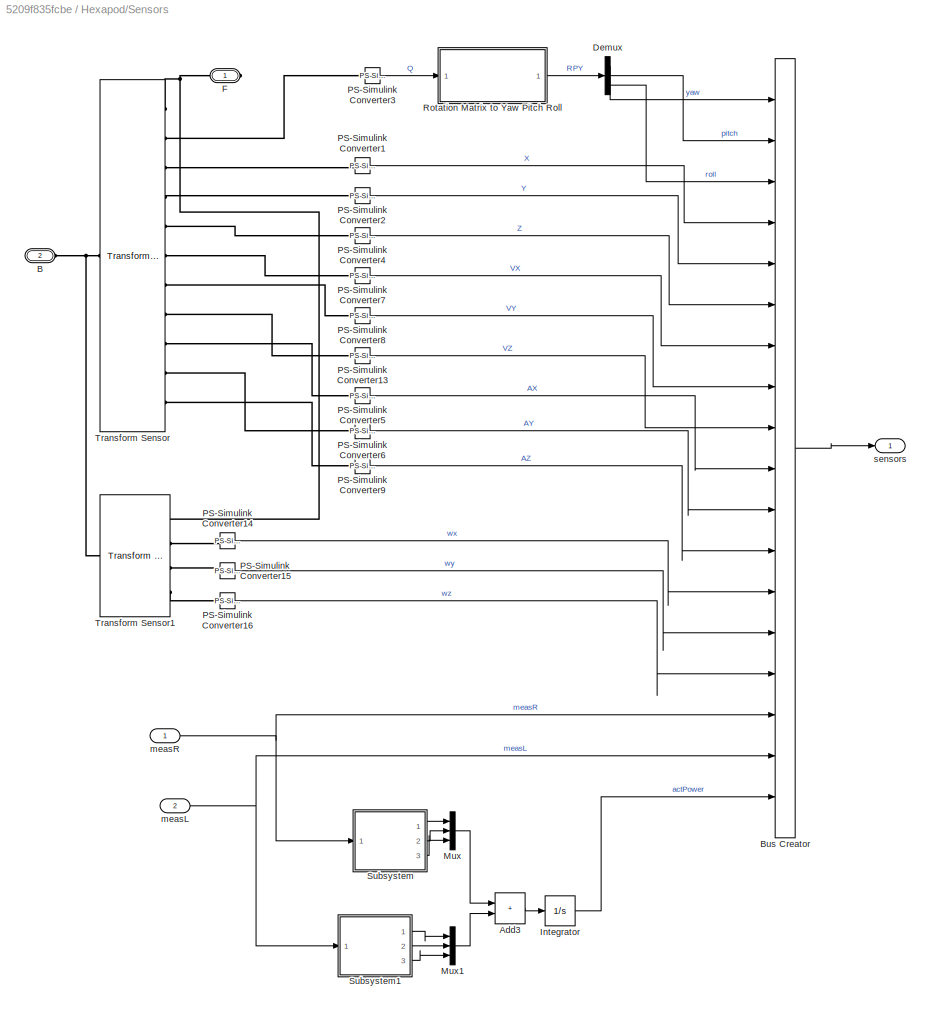
BLOCK [SubSystem] Hexapod/Sensors
  Ports = [2, 1, 0, 0, 0, 1, 1]
  RequestExecContextInheritance = off
BLOCK [Sum] Hexapod/Sensors/Add3
  IconShape = rectangular
  Ports = [2, 1]
BLOCK [PMIOPort] Hexapod/Sensors/B
  Port = 2
  Side = Left
BLOCK [BusCreator] Hexapod/Sensors/Bus Creator
  DisplayOption = bar
  InheritFromInputs = on
  Inputs = 18
  Ports = [18, 1]
BLOCK [Demux] Hexapod/Sensors/Demux
  Outputs = 3
  Ports = [1, 3]
BLOCK [PMIOPort] Hexapod/Sensors/F
  Side = Right
BLOCK [Integrator] Hexapod/Sensors/Integrator
  Ports = [1, 1]
BLOCK [Mux] Hexapod/Sensors/Mux
  DisplayOption = bar
  Inputs = 3
  Ports = [3, 1]
BLOCK [Mux] Hexapod/Sensors/Mux1
  DisplayOption = bar
  Inputs = 3
  Ports = [3, 1]
BLOCK [Reference] Hexapod/Sensors/PS-Simulink Converter1  REF=nesl_utility/PS-Simulink
Converter
  Ports = [0, 1, 0, 0, 0, 1]
  SourceBlock = nesl_utility/PS-Simulink\nConverter
  SourceProductBaseCode = MT,SS
  SourceType = PS-Simulink\nConverter
BLOCK [Reference] Hexapod/Sensors/PS-Simulink Converter13  REF=nesl_utility/PS-Simulink
Converter
  Ports = [0, 1, 0, 0, 0, 1]
  SourceBlock = nesl_utility/PS-Simulink\nConverter
  SourceProductBaseCode = MT,SS
  SourceType = PS-Simulink\nConverter
BLOCK [Reference] Hexapod/Sensors/PS-Simulink Converter14  REF=nesl_utility/PS-Simulink
Converter
  Ports = [0, 1, 0, 0, 0, 1]
  SourceBlock = nesl_utility/PS-Simulink\nConverter
  SourceProductBaseCode = MT,SS
  SourceType = PS-Simulink\nConverter
BLOCK [Reference] Hexapod/Sensors/PS-Simulink Converter15  REF=nesl_utility/PS-Simulink
Converter
  Ports = [0, 1, 0, 0, 0, 1]
  SourceBlock = nesl_utility/PS-Simulink\nConverter
  SourceProductBaseCode = MT,SS
  SourceType = PS-Simulink\nConverter
BLOCK [Reference] Hexapod/Sensors/PS-Simulink Converter16  REF=nesl_utility/PS-Simulink
Converter
  Ports = [0, 1, 0, 0, 0, 1]
  SourceBlock = nesl_utility/PS-Simulink\nConverter
  SourceProductBaseCode = MT,SS
  SourceType = PS-Simulink\nConverter
BLOCK [Reference] Hexapod/Sensors/PS-Simulink Converter2  REF=nesl_utility/PS-Simulink
Converter
  Ports = [0, 1, 0, 0, 0, 1]
  SourceBlock = nesl_utility/PS-Simulink\nConverter
  SourceProductBaseCode = MT,SS
  SourceType = PS-Simulink\nConverter
BLOCK [Reference] Hexapod/Sensors/PS-Simulink Converter3  REF=nesl_utility/PS-Simulink
Converter
  Ports = [0, 1, 0, 0, 0, 1]
  SourceBlock = nesl_utility/PS-Simulink\nConverter
  SourceProductBaseCode = MT,SS
  SourceType = PS-Simulink\nConverter
BLOCK [Reference] Hexapod/Sensors/PS-Simulink Converter4  REF=nesl_utility/PS-Simulink
Converter
  Ports = [0, 1, 0, 0, 0, 1]
  SourceBlock = nesl_utility/PS-Simulink\nConverter
  SourceProductBaseCode = MT,SS
  SourceType = PS-Simulink\nConverter
BLOCK [Reference] Hexapod/Sensors/PS-Simulink Converter5  REF=nesl_utility/PS-Simulink
Converter
  Ports = [0, 1, 0, 0, 0, 1]
  SourceBlock = nesl_utility/PS-Simulink\nConverter
  SourceProductBaseCode = MT,SS
  SourceType = PS-Simulink\nConverter
BLOCK [Reference] Hexapod/Sensors/PS-Simulink Converter6  REF=nesl_utility/PS-Simulink
Converter
  Ports = [0, 1, 0, 0, 0, 1]
  SourceBlock = nesl_utility/PS-Simulink\nConverter
  SourceProductBaseCode = MT,SS
  SourceType = PS-Simulink\nConverter
BLOCK [Reference] Hexapod/Sensors/PS-Simulink Converter7  REF=nesl_utility/PS-Simulink
Converter
  Ports = [0, 1, 0, 0, 0, 1]
  SourceBlock = nesl_utility/PS-Simulink\nConverter
  SourceProductBaseCode = MT,SS
  SourceType = PS-Simulink\nConverter
BLOCK [Reference] Hexapod/Sensors/PS-Simulink Converter8  REF=nesl_utility/PS-Simulink
Converter
  Ports = [0, 1, 0, 0, 0, 1]
  SourceBlock = nesl_utility/PS-Simulink\nConverter
  SourceProductBaseCode = MT,SS
  SourceType = PS-Simulink\nConverter
BLOCK [Reference] Hexapod/Sensors/PS-Simulink Converter9  REF=nesl_utility/PS-Simulink
Converter
  Ports = [0, 1, 0, 0, 0, 1]
  SourceBlock = nesl_utility/PS-Simulink\nConverter
  SourceProductBaseCode = MT,SS
  SourceType = PS-Simulink\nConverter
BLOCK [SubSystem] Hexapod/Sensors/Rotation Matrix to Yaw Pitch Roll
  ErrorFcn = Stateflow.Translate.translate
  PermitHierarchicalResolution = ExplicitOnly
  Ports = [1, 1]
  RequestExecContextInheritance = off
  SFBlockType = MATLAB Function
  TreatAsAtomicUnit = on
BLOCK [Demux] Hexapod/Sensors/Rotation Matrix to Yaw Pitch Roll/ Demux 
  Outputs = 1
  Ports = [1, 1]
BLOCK [S-Function] Hexapod/Sensors/Rotation Matrix to Yaw Pitch Roll/ SFunction 
  EnableBusSupport = on
  FunctionName = sf_sfun
  PortCounts = [1 2]
  Ports = [1, 2]
  SFcnIsStateOwnerBlock = off
  SFunctionDeploymentMode = off
  Tag = Stateflow S-Function 1
BLOCK [Terminator] Hexapod/Sensors/Rotation Matrix to Yaw Pitch Roll/ Terminator 
BLOCK [Outport] Hexapod/Sensors/Rotation Matrix to Yaw Pitch Roll/eul
  VectorParamsAs1DForOutWhenUnconnected = off
BLOCK [Inport] Hexapod/Sensors/Rotation Matrix to Yaw Pitch Roll/q
BLOCK [SubSystem] Hexapod/Sensors/Subsystem
  Ports = [1, 3]
  RequestExecContextInheritance = off
BLOCK [SubSystem] Hexapod/Sensors/Subsystem/Calculate Actuator Power
  Ports = [1, 1]
  RequestExecContextInheritance = off
BLOCK [Sum] Hexapod/Sensors/Subsystem/Calculate Actuator Power/Add
  IconShape = rectangular
  Inputs = 3
  Ports = [3, 1]
BLOCK [BusSelector] Hexapod/Sensors/Subsystem/Calculate Actuator Power/Bus Selector
  OutputSignals = signal1.arm1_ankle_speed,signal1.arm1_ankle_torque,signal1.arm1_knee_speed,signal1.arm1_knee_torque,signal1.arm1_hip_speed,signal1.arm1_hip_torque
  Ports = [1, 6]
BLOCK [Outport] Hexapod/Sensors/Subsystem/Calculate Actuator Power/P
  VectorParamsAs1DForOutWhenUnconnected = off
BLOCK [Product] Hexapod/Sensors/Subsystem/Calculate Actuator Power/Product
  Ports = [2, 1]
BLOCK [Product] Hexapod/Sensors/Subsystem/Calculate Actuator Power/Product1
  Ports = [2, 1]
BLOCK [Product] Hexapod/Sensors/Subsystem/Calculate Actuator Power/Product2
  Ports = [2, 1]
BLOCK [Inport] Hexapod/Sensors/Subsystem/Calculate Actuator Power/meas
BLOCK [SubSystem] Hexapod/Sensors/Subsystem/Calculate Actuator Power2
  Ports = [1, 1]
  RequestExecContextInheritance = off
BLOCK [Sum] Hexapod/Sensors/Subsystem/Calculate Actuator Power2/Add
  IconShape = rectangular
  Inputs = 3
  Ports = [3, 1]
BLOCK [BusSelector] Hexapod/Sensors/Subsystem/Calculate Actuator Power2/Bus Selector
  OutputSignals = signal2.arm2_ankle_speed,signal2.arm2_ankle_torque,signal2.arm2_knee_speed,signal2.arm2_knee_torque,signal2.arm2_hip_speed,signal2.arm2_hip_torque
  Ports = [1, 6]
BLOCK [Outport] Hexapod/Sensors/Subsystem/Calculate Actuator Power2/P
  VectorParamsAs1DForOutWhenUnconnected = off
BLOCK [Product] Hexapod/Sensors/Subsystem/Calculate Actuator Power2/Product
  Ports = [2, 1]
BLOCK [Product] Hexapod/Sensors/Subsystem/Calculate Actuator Power2/Product1
  Ports = [2, 1]
BLOCK [Product] Hexapod/Sensors/Subsystem/Calculate Actuator Power2/Product2
  Ports = [2, 1]
BLOCK [Inport] Hexapod/Sensors/Subsystem/Calculate Actuator Power2/meas
BLOCK [SubSystem] Hexapod/Sensors/Subsystem/Calculate Actuator Power3
  Ports = [1, 1]
  RequestExecContextInheritance = off
BLOCK [Sum] Hexapod/Sensors/Subsystem/Calculate Actuator Power3/Add
  IconShape = rectangular
  Inputs = 3
  Ports = [3, 1]
BLOCK [BusSelector] Hexapod/Sensors/Subsystem/Calculate Actuator Power3/Bus Selector
  OutputSignals = signal3.arm3_ankle_speed,signal3.arm3_ankle_torque,signal3.arm3_knee_speed,signal3.arm3_knee_torque,signal3.arm3_hip_speed,signal3.arm3_hip_torque
  Ports = [1, 6]
BLOCK [Outport] Hexapod/Sensors/Subsystem/Calculate Actuator Power3/P
  VectorParamsAs1DForOutWhenUnconnected = off
BLOCK [Product] Hexapod/Sensors/Subsystem/Calculate Actuator Power3/Product
  Ports = [2, 1]
BLOCK [Product] Hexapod/Sensors/Subsystem/Calculate Actuator Power3/Product1
  Ports = [2, 1]
BLOCK [Product] Hexapod/Sensors/Subsystem/Calculate Actuator Power3/Product2
  Ports = [2, 1]
BLOCK [Inport] Hexapod/Sensors/Subsystem/Calculate Actuator Power3/meas
BLOCK [Outport] Hexapod/Sensors/Subsystem/P
BLOCK [Outport] Hexapod/Sensors/Subsystem/P1
  Port = 2
BLOCK [Outport] Hexapod/Sensors/Subsystem/P2
  Port = 3
BLOCK [Inport] Hexapod/Sensors/Subsystem/measR
BLOCK [SubSystem] Hexapod/Sensors/Subsystem1
  Ports = [1, 3]
  RequestExecContextInheritance = off
BLOCK [SubSystem] Hexapod/Sensors/Subsystem1/Calculate Actuator Power
  Ports = [1, 1]
  RequestExecContextInheritance = off
BLOCK [Sum] Hexapod/Sensors/Subsystem1/Calculate Actuator Power/Add
  IconShape = rectangular
  Inputs = 3
  Ports = [3, 1]
BLOCK [BusSelector] Hexapod/Sensors/Subsystem1/Calculate Actuator Power/Bus Selector
  OutputSignals = signal1.arm1_ankle_speed,signal1.arm1_ankle_torque,signal1.arm1_knee_speed,signal1.arm1_knee_torque,signal1.arm1_hip_speed,signal1.arm1_hip_torque
  Ports = [1, 6]
BLOCK [Outport] Hexapod/Sensors/Subsystem1/Calculate Actuator Power/P
  VectorParamsAs1DForOutWhenUnconnected = off
BLOCK [Product] Hexapod/Sensors/Subsystem1/Calculate Actuator Power/Product
  Ports = [2, 1]
BLOCK [Product] Hexapod/Sensors/Subsystem1/Calculate Actuator Power/Product1
  Ports = [2, 1]
BLOCK [Product] Hexapod/Sensors/Subsystem1/Calculate Actuator Power/Product2
  Ports = [2, 1]
BLOCK [Inport] Hexapod/Sensors/Subsystem1/Calculate Actuator Power/meas
BLOCK [SubSystem] Hexapod/Sensors/Subsystem1/Calculate Actuator Power2
  Ports = [1, 1]
  RequestExecContextInheritance = off
BLOCK [Sum] Hexapod/Sensors/Subsystem1/Calculate Actuator Power2/Add
  IconShape = rectangular
  Inputs = 3
  Ports = [3, 1]
BLOCK [BusSelector] Hexapod/Sensors/Subsystem1/Calculate Actuator Power2/Bus Selector
  OutputSignals = signal2.arm2_ankle_speed,signal2.arm2_ankle_torque,signal2.arm2_knee_speed,signal2.arm2_knee_torque,signal2.arm2_hip_speed,signal2.arm2_hip_torque
  Ports = [1, 6]
BLOCK [Outport] Hexapod/Sensors/Subsystem1/Calculate Actuator Power2/P
  VectorParamsAs1DForOutWhenUnconnected = off
BLOCK [Product] Hexapod/Sensors/Subsystem1/Calculate Actuator Power2/Product
  Ports = [2, 1]
BLOCK [Product] Hexapod/Sensors/Subsystem1/Calculate Actuator Power2/Product1
  Ports = [2, 1]
BLOCK [Product] Hexapod/Sensors/Subsystem1/Calculate Actuator Power2/Product2
  Ports = [2, 1]
BLOCK [Inport] Hexapod/Sensors/Subsystem1/Calculate Actuator Power2/meas
BLOCK [SubSystem] Hexapod/Sensors/Subsystem1/Calculate Actuator Power3
  Ports = [1, 1]
  RequestExecContextInheritance = off
BLOCK [Sum] Hexapod/Sensors/Subsystem1/Calculate Actuator Power3/Add
  IconShape = rectangular
  Inputs = 3
  Ports = [3, 1]
BLOCK [BusSelector] Hexapod/Sensors/Subsystem1/Calculate Actuator Power3/Bus Selector
  OutputSignals = signal3.arm3_ankle_speed,signal3.arm3_ankle_torque,signal3.arm3_knee_speed,signal3.arm3_knee_torque,signal3.arm3_hip_speed,signal3.arm3_hip_torque
  Ports = [1, 6]
BLOCK [Outport] Hexapod/Sensors/Subsystem1/Calculate Actuator Power3/P
  VectorParamsAs1DForOutWhenUnconnected = off
BLOCK [Product] Hexapod/Sensors/Subsystem1/Calculate Actuator Power3/Product
  Ports = [2, 1]
BLOCK [Product] Hexapod/Sensors/Subsystem1/Calculate Actuator Power3/Product1
  Ports = [2, 1]
BLOCK [Product] Hexapod/Sensors/Subsystem1/Calculate Actuator Power3/Product2
  Ports = [2, 1]
BLOCK [Inport] Hexapod/Sensors/Subsystem1/Calculate Actuator Power3/meas
BLOCK [Outport] Hexapod/Sensors/Subsystem1/P
BLOCK [Outport] Hexapod/Sensors/Subsystem1/P1
  Port = 2
BLOCK [Outport] Hexapod/Sensors/Subsystem1/P2
  Port = 3
BLOCK [Inport] Hexapod/Sensors/Subsystem1/measR
BLOCK [Reference] Hexapod/Sensors/Transform Sensor  REF=sm_lib/Frames and
Transforms/Transform
Sensor
  Ports = [0, 0, 0, 0, 0, 1, 11]
  SourceBlock = sm_lib/Frames and\nTransforms/Transform\nSensor
  SourceProductBaseCode = MS
  SourceType = Transform\nSensor
BLOCK [Reference] Hexapod/Sensors/Transform Sensor1  REF=sm_lib/Frames and
Transforms/Transform
Sensor
  Ports = [0, 0, 0, 0, 0, 1, 4]
  SourceBlock = sm_lib/Frames and\nTransforms/Transform\nSensor
  SourceProductBaseCode = MS
  SourceType = Transform\nSensor
BLOCK [Inport] Hexapod/Sensors/measL
  Port = 2
BLOCK [Inport] Hexapod/Sensors/measR
BLOCK [Outport] Hexapod/Sensors/sensors
  VectorParamsAs1DForOutWhenUnconnected = off
BLOCK [Reference] Hexapod/Spline  REF=sm_lib/Curves and Surfaces/Spline
  Ports = [0, 0, 0, 0, 0, 1, 1]
  SourceBlock = sm_lib/Curves and Surfaces/Spline
  SourceProductBaseCode = MS
  SourceType = Spline
BLOCK [Gain] Hexapod/Torque Scaling
  Gain = max_torque
BLOCK [SubSystem] Hexapod/World and Ground
  Ports = [0, 0, 0, 0, 0, 1, 1]
  RequestExecContextInheritance = off
BLOCK [PMIOPort] Hexapod/World and Ground/G
  Port = 2
  Side = Right
BLOCK [Reference] Hexapod/World and Ground/Mechanism Configuration  REF=sm_lib/Utilities/Mechanism
Configuration
  Ports = [0, 0, 0, 0, 0, 0, 1]
  SourceBlock = sm_lib/Utilities/Mechanism\nConfiguration
  SourceProductBaseCode = MS
  SourceType = Mechanism\nConfiguration
BLOCK [Reference] Hexapod/World and Ground/Plane Offset  REF=sm_lib/Frames and
Transforms/Rigid
Transform
  Ports = [0, 0, 0, 0, 0, 1, 1]
  SourceBlock = sm_lib/Frames and\nTransforms/Rigid\nTransform
  SourceProductBaseCode = MS
  SourceType = Rigid\nTransform
BLOCK [Reference] Hexapod/World and Ground/Solver Configuration  REF=nesl_utility/Solver
Configuration
  Ports = [0, 0, 0, 0, 0, 0, 1]
  SourceBlock = nesl_utility/Solver\nConfiguration
  SourceProductBaseCode = MT,SS
  SourceType = Solver\nConfiguration
BLOCK [PMIOPort] Hexapod/World and Ground/W
  Side = Left
BLOCK [Reference] Hexapod/World and Ground/World Frame1  REF=sm_lib/Frames and
Transforms/World Frame
  Ports = [0, 0, 0, 0, 0, 0, 1]
  SourceBlock = sm_lib/Frames and\nTransforms/World Frame
  SourceProductBaseCode = MS
  SourceType = World Frame
BLOCK [Reference] Hexapod/World and Ground/World Plane  REF=sm_lib/Body Elements/Brick Solid
  Ports = [0, 0, 0, 0, 0, 1, 1]
  SourceBlock = sm_lib/Body Elements/Brick Solid
  SourceProductBaseCode = MS
  SourceType = Brick Solid
BLOCK [Reference] Hexapod/body  REF=sm_lib/Body Elements/Brick Solid
  NameLocation = top
  Ports = [0, 0, 0, 0, 0, 0, 1]
  SourceBlock = sm_lib/Body Elements/Brick Solid
  SourceProductBaseCode = MS
  SourceType = Brick Solid
BLOCK [Inport] Hexapod/inp
BLOCK [Outport] Hexapod/sensors
  VectorParamsAs1DForOutWhenUnconnected = off
BLOCK [Reference] RL Agent  REF=rllib/RL Agent
  Ports = [3, 2]
  SourceBlock = rllib/RL Agent
  SourceProductBaseCode = RL
  SourceType = RL Agent
BLOCK [UnitDelay] Unit Delay
  HasFrameUpgradeWarning = on
  SampleTime = -1
ANNOTATION Calculate Reward: Reward function inspired by "Emergence of Locomotion Behaviours in Rich Environments" Google DeepMind, 2017 https://arxiv.org/pdf/1707.02286.pdf
LINE Calculate Observation/Bus Selector1:1 -> Calculate Observation/Mux:13
LINE Calculate Observation/Bus Selector1:10 -> Calculate Observation/Mux:22
LINE Calculate Observation/Bus Selector1:11 -> Calculate Observation/Mux:23
LINE Calculate Observation/Bus Selector1:12 -> Calculate Observation/Mux:24
LINE Calculate Observation/Bus Selector1:13 -> Calculate Observation/Mux:25
LINE Calculate Observation/Bus Selector1:14 -> Calculate Observation/Mux:26
LINE Calculate Observation/Bus Selector1:15 -> Calculate Observation/Mux:27
LINE Calculate Observation/Bus Selector1:16 -> Calculate Observation/Mux:28
LINE Calculate Observation/Bus Selector1:17 -> Calculate Observation/Mux:29
LINE Calculate Observation/Bus Selector1:18 -> Calculate Observation/Mux:30
LINE Calculate Observation/Bus Selector1:2 -> Calculate Observation/Mux:14
LINE Calculate Observation/Bus Selector1:3 -> Calculate Observation/Mux:15
LINE Calculate Observation/Bus Selector1:4 -> Calculate Observation/Mux:16
LINE Calculate Observation/Bus Selector1:5 -> Calculate Observation/Mux:17
LINE Calculate Observation/Bus Selector1:6 -> Calculate Observation/Mux:18
LINE Calculate Observation/Bus Selector1:7 -> Calculate Observation/Mux:19
LINE Calculate Observation/Bus Selector1:8 -> Calculate Observation/Mux:20
LINE Calculate Observation/Bus Selector1:9 -> Calculate Observation/Mux:21
LINE Calculate Observation/Bus Selector2:1 -> Calculate Observation/Mux:31
LINE Calculate Observation/Bus Selector2:10 -> Calculate Observation/Mux:40
LINE Calculate Observation/Bus Selector2:11 -> Calculate Observation/Mux:41
LINE Calculate Observation/Bus Selector2:12 -> Calculate Observation/Mux:42
LINE Calculate Observation/Bus Selector2:13 -> Calculate Observation/Mux:43
LINE Calculate Observation/Bus Selector2:14 -> Calculate Observation/Mux:44
LINE Calculate Observation/Bus Selector2:15 -> Calculate Observation/Mux:45
LINE Calculate Observation/Bus Selector2:16 -> Calculate Observation/Mux:46
LINE Calculate Observation/Bus Selector2:17 -> Calculate Observation/Mux:47
LINE Calculate Observation/Bus Selector2:18 -> Calculate Observation/Mux:48
LINE Calculate Observation/Bus Selector2:2 -> Calculate Observation/Mux:32
LINE Calculate Observation/Bus Selector2:3 -> Calculate Observation/Mux:33
LINE Calculate Observation/Bus Selector2:4 -> Calculate Observation/Mux:34
LINE Calculate Observation/Bus Selector2:5 -> Calculate Observation/Mux:35
LINE Calculate Observation/Bus Selector2:6 -> Calculate Observation/Mux:36
LINE Calculate Observation/Bus Selector2:7 -> Calculate Observation/Mux:37
LINE Calculate Observation/Bus Selector2:8 -> Calculate Observation/Mux:38
LINE Calculate Observation/Bus Selector2:9 -> Calculate Observation/Mux:39
LINE Calculate Observation/Bus Selector:1 -> Calculate Observation/Mux:1
LINE Calculate Observation/Bus Selector:10 -> Calculate Observation/Mux:10
LINE Calculate Observation/Bus Selector:11 -> Calculate Observation/Mux:12
LINE Calculate Observation/Bus Selector:12 -> Calculate Observation/Bus Selector1:1
LINE Calculate Observation/Bus Selector:13 -> Calculate Observation/Bus Selector2:1
LINE Calculate Observation/Bus Selector:2 -> Calculate Observation/Subtract Initial Height:1
LINE Calculate Observation/Bus Selector:3 -> Calculate Observation/Mux:3
LINE Calculate Observation/Bus Selector:4 -> Calculate Observation/Mux:4
LINE Calculate Observation/Bus Selector:5 -> Calculate Observation/Mux:5
LINE Calculate Observation/Bus Selector:6 -> Calculate Observation/Mux:6
LINE Calculate Observation/Bus Selector:7 -> Calculate Observation/Mux:7
LINE Calculate Observation/Bus Selector:8 -> Calculate Observation/Mux:8
LINE Calculate Observation/Bus Selector:9 -> Calculate Observation/Mux:9
LINE Calculate Observation/Mux:1 -> Calculate Observation/Rate Transition:1
LINE Calculate Observation/Rate Transition:1 -> Calculate Observation/observation:1
LINE Calculate Observation/Scale Height:1 -> Calculate Observation/Mux:2
LINE Calculate Observation/Subtract Initial Height:1 -> Calculate Observation/Scale Height:1
LINE Calculate Observation/meas:1 -> Calculate Observation/Bus Selector:1
LINE Calculate Observation/prevAct:1 -> Calculate Observation/Mux:11
LINE Calculate Observation:1 -> RL Agent:1
NET Calculate Reward/Add1:1 -> Calculate Reward/Add2:2, Calculate Reward/Individual Rewards:2
LINE Calculate Reward/Add2:1 -> Calculate Reward/reward:1
LINE Calculate Reward/Bus Selector:1 -> Calculate Reward/Forward Reward Scaling:1
LINE Calculate Reward/Bus Selector:2 -> Calculate Reward/Square3:1
LINE Calculate Reward/Bus Selector:3 -> Calculate Reward/Subtract Initial Height:1
LINE Calculate Reward/Deviation Penalty Scaling Y:1 -> Calculate Reward/Add1:1
LINE Calculate Reward/Deviation Penalty Scaling Z:1 -> Calculate Reward/Add1:2
NET Calculate Reward/Duration Reward:1 -> Calculate Reward/Add2:4, Calculate Reward/Individual Rewards:4
NET Calculate Reward/Forward Reward Scaling:1 -> Calculate Reward/Add2:1, Calculate Reward/Individual Rewards:1
LINE Calculate Reward/Rate Transition:1 -> Calculate Reward/Bus Selector:1
LINE Calculate Reward/Square2:1 -> Calculate Reward/Sum of Elements:1
LINE Calculate Reward/Square3:1 -> Calculate Reward/Deviation Penalty Scaling Y:1
LINE Calculate Reward/Square4:1 -> Calculate Reward/Deviation Penalty Scaling Z:1
LINE Calculate Reward/Subtract Initial Height:1 -> Calculate Reward/Square4:1
LINE Calculate Reward/Sum of Elements:1 -> Calculate Reward/Torque Penalty Scaling:1
NET Calculate Reward/Torque Penalty Scaling:1 -> Calculate Reward/Add2:3, Calculate Reward/Individual Rewards:3
LINE Calculate Reward/meas:1 -> Calculate Reward/Rate Transition:1
LINE Calculate Reward/prevAct:1 -> Calculate Reward/Square2:1
LINE Calculate Reward:1 -> RL Agent:2
LINE Check if Done/Abs1:1 -> Check if Done/Compare To Constant1:1
LINE Check if Done/Abs2:1 -> Check if Done/Compare To Constant2:1
LINE Check if Done/Abs3:1 -> Check if Done/Detect Lateral Motion:1
LINE Check if Done/Abs:1 -> Check if Done/Compare To Constant:1
LINE Check if Done/Bus Selector:1 -> Check if Done/Abs3:1
LINE Check if Done/Bus Selector:2 -> Check if Done/Detect Fallen Robot:1
LINE Check if Done/Bus Selector:3 -> Check if Done/Abs:1
LINE Check if Done/Bus Selector:4 -> Check if Done/Abs1:1
LINE Check if Done/Bus Selector:5 -> Check if Done/Abs2:1
LINE Check if Done/Compare To Constant1:1 -> Check if Done/Logical Operator:4
LINE Check if Done/Compare To Constant2:1 -> Check if Done/Logical Operator:5
LINE Check if Done/Compare To Constant:1 -> Check if Done/Logical Operator:3
LINE Check if Done/Detect Fallen Robot:1 -> Check if Done/Logical Operator:2
LINE Check if Done/Detect Lateral Motion:1 -> Check if Done/Logical Operator:1
LINE Check if Done/Logical Operator:1 -> Check if Done/Rate Transition:1
LINE Check if Done/Rate Transition:1 -> Check if Done/isdone:1
LINE Check if Done/meas:1 -> Check if Done/Bus Selector:1
LINE Check if Done:1 -> RL Agent:3
NET Hexapod/Demux:1 -> Hexapod/Actions:1, Hexapod/Robot Legs R:1
NET Hexapod/Demux:2 -> Hexapod/Actions:2, Hexapod/Robot Legs L:1
LINE Hexapod/Robot Legs L/Bus Creator3:1 -> Hexapod/Robot Legs L/meas:1
LINE Hexapod/Robot Legs L/Demux1:1 -> Hexapod/Robot Legs L/Subsystem_Larm1:1
LINE Hexapod/Robot Legs L/Demux1:2 -> Hexapod/Robot Legs L/Subsystem_Larm1:2
LINE Hexapod/Robot Legs L/Demux1:3 -> Hexapod/Robot Legs L/Subsystem_Larm1:3
LINE Hexapod/Robot Legs L/Demux2:1 -> Hexapod/Robot Legs L/Subsystem_arm2:1
LINE Hexapod/Robot Legs L/Demux2:2 -> Hexapod/Robot Legs L/Subsystem_arm2:2
LINE Hexapod/Robot Legs L/Demux2:3 -> Hexapod/Robot Legs L/Subsystem_arm2:3
LINE Hexapod/Robot Legs L/Demux3:1 -> Hexapod/Robot Legs L/Subsystem_arm3:1
LINE Hexapod/Robot Legs L/Demux3:2 -> Hexapod/Robot Legs L/Subsystem_arm3:2
LINE Hexapod/Robot Legs L/Demux3:3 -> Hexapod/Robot Legs L/Subsystem_arm3:3
LINE Hexapod/Robot Legs L/Demux:1 -> Hexapod/Robot Legs L/Demux1:1
LINE Hexapod/Robot Legs L/Demux:2 -> Hexapod/Robot Legs L/Demux2:1
LINE Hexapod/Robot Legs L/Demux:3 -> Hexapod/Robot Legs L/Demux3:1
LINE Hexapod/Robot Legs L/Subsystem_Larm1/Ankle Joint:1 -> Hexapod/Robot Legs L/Subsystem_Larm1/meas:1
LINE Hexapod/Robot Legs L/Subsystem_Larm1/Hip Joint:1 -> Hexapod/Robot Legs L/Subsystem_Larm1/meas2:1
LINE Hexapod/Robot Legs L/Subsystem_Larm1/Knee Joint:1 -> Hexapod/Robot Legs L/Subsystem_Larm1/meas1:1
LINE Hexapod/Robot Legs L/Subsystem_Larm1/PS-Simulink Converter1:1 -> Hexapod/Robot Legs L/Subsystem_Larm1/output1:1
LINE Hexapod/Robot Legs L/Subsystem_Larm1/PS-Simulink Converter:1 -> Hexapod/Robot Legs L/Subsystem_Larm1/output:1
LINE Hexapod/Robot Legs L/Subsystem_Larm1/t1:1 -> Hexapod/Robot Legs L/Subsystem_Larm1/Knee Joint:1
LINE Hexapod/Robot Legs L/Subsystem_Larm1/t2:1 -> Hexapod/Robot Legs L/Subsystem_Larm1/Hip Joint:1
LINE Hexapod/Robot Legs L/Subsystem_Larm1/t:1 -> Hexapod/Robot Legs L/Subsystem_Larm1/Ankle Joint:1
LINE Hexapod/Robot Legs L/Subsystem_Larm1:1 -> Hexapod/Robot Legs L/arm1:1
LINE Hexapod/Robot Legs L/Subsystem_Larm1:2 -> Hexapod/Robot Legs L/arm1:2
LINE Hexapod/Robot Legs L/Subsystem_Larm1:3 -> Hexapod/Robot Legs L/arm1:3
LINE Hexapod/Robot Legs L/Subsystem_Larm1:4 -> Hexapod/Robot Legs L/arm1:4
LINE Hexapod/Robot Legs L/Subsystem_Larm1:5 -> Hexapod/Robot Legs L/arm1:5
LINE Hexapod/Robot Legs L/Subsystem_arm2/Ankle Joint:1 -> Hexapod/Robot Legs L/Subsystem_arm2/meas:1
LINE Hexapod/Robot Legs L/Subsystem_arm2/Hip Joint:1 -> Hexapod/Robot Legs L/Subsystem_arm2/meas2:1
LINE Hexapod/Robot Legs L/Subsystem_arm2/Knee Joint:1 -> Hexapod/Robot Legs L/Subsystem_arm2/meas1:1
LINE Hexapod/Robot Legs L/Subsystem_arm2/PS-Simulink Converter1:1 -> Hexapod/Robot Legs L/Subsystem_arm2/output1:1
LINE Hexapod/Robot Legs L/Subsystem_arm2/PS-Simulink Converter:1 -> Hexapod/Robot Legs L/Subsystem_arm2/output:1
LINE Hexapod/Robot Legs L/Subsystem_arm2/t1:1 -> Hexapod/Robot Legs L/Subsystem_arm2/Knee Joint:1
LINE Hexapod/Robot Legs L/Subsystem_arm2/t2:1 -> Hexapod/Robot Legs L/Subsystem_arm2/Hip Joint:1
LINE Hexapod/Robot Legs L/Subsystem_arm2/t:1 -> Hexapod/Robot Legs L/Subsystem_arm2/Ankle Joint:1
LINE Hexapod/Robot Legs L/Subsystem_arm2:1 -> Hexapod/Robot Legs L/arm2:1
LINE Hexapod/Robot Legs L/Subsystem_arm2:2 -> Hexapod/Robot Legs L/arm2:2
LINE Hexapod/Robot Legs L/Subsystem_arm2:3 -> Hexapod/Robot Legs L/arm2:3
LINE Hexapod/Robot Legs L/Subsystem_arm2:4 -> Hexapod/Robot Legs L/arm2:4
LINE Hexapod/Robot Legs L/Subsystem_arm2:5 -> Hexapod/Robot Legs L/arm2:5
LINE Hexapod/Robot Legs L/Subsystem_arm3/Ankle Joint:1 -> Hexapod/Robot Legs L/Subsystem_arm3/meas:1
LINE Hexapod/Robot Legs L/Subsystem_arm3/Hip Joint:1 -> Hexapod/Robot Legs L/Subsystem_arm3/meas2:1
LINE Hexapod/Robot Legs L/Subsystem_arm3/Knee Joint:1 -> Hexapod/Robot Legs L/Subsystem_arm3/meas1:1
LINE Hexapod/Robot Legs L/Subsystem_arm3/PS-Simulink Converter1:1 -> Hexapod/Robot Legs L/Subsystem_arm3/output1:1
LINE Hexapod/Robot Legs L/Subsystem_arm3/PS-Simulink Converter:1 -> Hexapod/Robot Legs L/Subsystem_arm3/output:1
LINE Hexapod/Robot Legs L/Subsystem_arm3/t1:1 -> Hexapod/Robot Legs L/Subsystem_arm3/Knee Joint:1
LINE Hexapod/Robot Legs L/Subsystem_arm3/t2:1 -> Hexapod/Robot Legs L/Subsystem_arm3/Hip Joint:1
LINE Hexapod/Robot Legs L/Subsystem_arm3/t:1 -> Hexapod/Robot Legs L/Subsystem_arm3/Ankle Joint:1
LINE Hexapod/Robot Legs L/Subsystem_arm3:1 -> Hexapod/Robot Legs L/arm3:1
LINE Hexapod/Robot Legs L/Subsystem_arm3:2 -> Hexapod/Robot Legs L/arm3:2
LINE Hexapod/Robot Legs L/Subsystem_arm3:3 -> Hexapod/Robot Legs L/arm3:3
LINE Hexapod/Robot Legs L/Subsystem_arm3:4 -> Hexapod/Robot Legs L/arm3:4
LINE Hexapod/Robot Legs L/Subsystem_arm3:5 -> Hexapod/Robot Legs L/arm3:5
LINE Hexapod/Robot Legs L/arm1:1 -> Hexapod/Robot Legs L/Bus Creator3:1
LINE Hexapod/Robot Legs L/arm2:1 -> Hexapod/Robot Legs L/Bus Creator3:2
LINE Hexapod/Robot Legs L/arm3:1 -> Hexapod/Robot Legs L/Bus Creator3:3
LINE Hexapod/Robot Legs L/torques:1 -> Hexapod/Robot Legs L/Demux:1
LINE Hexapod/Robot Legs L:1 -> Hexapod/Sensors:2
LINE Hexapod/Robot Legs R/Bus Creator3:1 -> Hexapod/Robot Legs R/meas:1
LINE Hexapod/Robot Legs R/Demux1:1 -> Hexapod/Robot Legs R/Subsystem_arm1:1
LINE Hexapod/Robot Legs R/Demux1:2 -> Hexapod/Robot Legs R/Subsystem_arm1:2
LINE Hexapod/Robot Legs R/Demux1:3 -> Hexapod/Robot Legs R/Subsystem_arm1:3
LINE Hexapod/Robot Legs R/Demux2:1 -> Hexapod/Robot Legs R/Subsystem_arm2:1
LINE Hexapod/Robot Legs R/Demux2:2 -> Hexapod/Robot Legs R/Subsystem_arm2:2
LINE Hexapod/Robot Legs R/Demux2:3 -> Hexapod/Robot Legs R/Subsystem_arm2:3
LINE Hexapod/Robot Legs R/Demux3:1 -> Hexapod/Robot Legs R/Subsystem_arm3:1
LINE Hexapod/Robot Legs R/Demux3:2 -> Hexapod/Robot Legs R/Subsystem_arm3:2
LINE Hexapod/Robot Legs R/Demux3:3 -> Hexapod/Robot Legs R/Subsystem_arm3:3
LINE Hexapod/Robot Legs R/Demux:1 -> Hexapod/Robot Legs R/Demux1:1
LINE Hexapod/Robot Legs R/Demux:2 -> Hexapod/Robot Legs R/Demux2:1
LINE Hexapod/Robot Legs R/Demux:3 -> Hexapod/Robot Legs R/Demux3:1
LINE Hexapod/Robot Legs R/Subsystem_arm1/Ankle Joint:1 -> Hexapod/Robot Legs R/Subsystem_arm1/meas:1
LINE Hexapod/Robot Legs R/Subsystem_arm1/Hip Joint:1 -> Hexapod/Robot Legs R/Subsystem_arm1/meas2:1
LINE Hexapod/Robot Legs R/Subsystem_arm1/Knee Joint:1 -> Hexapod/Robot Legs R/Subsystem_arm1/meas1:1
LINE Hexapod/Robot Legs R/Subsystem_arm1/PS-Simulink Converter1:1 -> Hexapod/Robot Legs R/Subsystem_arm1/output1:1
LINE Hexapod/Robot Legs R/Subsystem_arm1/PS-Simulink Converter:1 -> Hexapod/Robot Legs R/Subsystem_arm1/output:1
LINE Hexapod/Robot Legs R/Subsystem_arm1/t1:1 -> Hexapod/Robot Legs R/Subsystem_arm1/Knee Joint:1
LINE Hexapod/Robot Legs R/Subsystem_arm1/t2:1 -> Hexapod/Robot Legs R/Subsystem_arm1/Hip Joint:1
LINE Hexapod/Robot Legs R/Subsystem_arm1/t:1 -> Hexapod/Robot Legs R/Subsystem_arm1/Ankle Joint:1
LINE Hexapod/Robot Legs R/Subsystem_arm1:1 -> Hexapod/Robot Legs R/arm1:1
LINE Hexapod/Robot Legs R/Subsystem_arm1:2 -> Hexapod/Robot Legs R/arm1:2
LINE Hexapod/Robot Legs R/Subsystem_arm1:3 -> Hexapod/Robot Legs R/arm1:3
LINE Hexapod/Robot Legs R/Subsystem_arm1:4 -> Hexapod/Robot Legs R/arm1:4
LINE Hexapod/Robot Legs R/Subsystem_arm1:5 -> Hexapod/Robot Legs R/arm1:5
LINE Hexapod/Robot Legs R/Subsystem_arm2/Ankle Joint:1 -> Hexapod/Robot Legs R/Subsystem_arm2/meas:1
LINE Hexapod/Robot Legs R/Subsystem_arm2/Hip Joint:1 -> Hexapod/Robot Legs R/Subsystem_arm2/meas2:1
LINE Hexapod/Robot Legs R/Subsystem_arm2/Knee Joint:1 -> Hexapod/Robot Legs R/Subsystem_arm2/meas1:1
LINE Hexapod/Robot Legs R/Subsystem_arm2/PS-Simulink Converter1:1 -> Hexapod/Robot Legs R/Subsystem_arm2/output1:1
LINE Hexapod/Robot Legs R/Subsystem_arm2/PS-Simulink Converter:1 -> Hexapod/Robot Legs R/Subsystem_arm2/output:1
LINE Hexapod/Robot Legs R/Subsystem_arm2/t1:1 -> Hexapod/Robot Legs R/Subsystem_arm2/Knee Joint:1
LINE Hexapod/Robot Legs R/Subsystem_arm2/t2:1 -> Hexapod/Robot Legs R/Subsystem_arm2/Hip Joint:1
LINE Hexapod/Robot Legs R/Subsystem_arm2/t:1 -> Hexapod/Robot Legs R/Subsystem_arm2/Ankle Joint:1
LINE Hexapod/Robot Legs R/Subsystem_arm2:1 -> Hexapod/Robot Legs R/arm2:1
LINE Hexapod/Robot Legs R/Subsystem_arm2:2 -> Hexapod/Robot Legs R/arm2:2
LINE Hexapod/Robot Legs R/Subsystem_arm2:3 -> Hexapod/Robot Legs R/arm2:3
LINE Hexapod/Robot Legs R/Subsystem_arm2:4 -> Hexapod/Robot Legs R/arm2:4
LINE Hexapod/Robot Legs R/Subsystem_arm2:5 -> Hexapod/Robot Legs R/arm2:5
LINE Hexapod/Robot Legs R/Subsystem_arm3/Ankle Joint:1 -> Hexapod/Robot Legs R/Subsystem_arm3/meas:1
LINE Hexapod/Robot Legs R/Subsystem_arm3/Hip Joint:1 -> Hexapod/Robot Legs R/Subsystem_arm3/meas2:1
LINE Hexapod/Robot Legs R/Subsystem_arm3/Knee Joint:1 -> Hexapod/Robot Legs R/Subsystem_arm3/meas1:1
LINE Hexapod/Robot Legs R/Subsystem_arm3/PS-Simulink Converter1:1 -> Hexapod/Robot Legs R/Subsystem_arm3/output1:1
LINE Hexapod/Robot Legs R/Subsystem_arm3/PS-Simulink Converter:1 -> Hexapod/Robot Legs R/Subsystem_arm3/output:1
LINE Hexapod/Robot Legs R/Subsystem_arm3/t1:1 -> Hexapod/Robot Legs R/Subsystem_arm3/Knee Joint:1
LINE Hexapod/Robot Legs R/Subsystem_arm3/t2:1 -> Hexapod/Robot Legs R/Subsystem_arm3/Hip Joint:1
LINE Hexapod/Robot Legs R/Subsystem_arm3/t:1 -> Hexapod/Robot Legs R/Subsystem_arm3/Ankle Joint:1
LINE Hexapod/Robot Legs R/Subsystem_arm3:1 -> Hexapod/Robot Legs R/arm3:1
LINE Hexapod/Robot Legs R/Subsystem_arm3:2 -> Hexapod/Robot Legs R/arm3:2
LINE Hexapod/Robot Legs R/Subsystem_arm3:3 -> Hexapod/Robot Legs R/arm3:3
LINE Hexapod/Robot Legs R/Subsystem_arm3:4 -> Hexapod/Robot Legs R/arm3:4
LINE Hexapod/Robot Legs R/Subsystem_arm3:5 -> Hexapod/Robot Legs R/arm3:5
LINE Hexapod/Robot Legs R/arm1:1 -> Hexapod/Robot Legs R/Bus Creator3:1
LINE Hexapod/Robot Legs R/arm2:1 -> Hexapod/Robot Legs R/Bus Creator3:2
LINE Hexapod/Robot Legs R/arm3:1 -> Hexapod/Robot Legs R/Bus Creator3:3
LINE Hexapod/Robot Legs R/torques:1 -> Hexapod/Robot Legs R/Demux:1
LINE Hexapod/Robot Legs R:1 -> Hexapod/Sensors:1
LINE Hexapod/Sensors/Add3:1 -> Hexapod/Sensors/Integrator:1
LINE Hexapod/Sensors/Bus Creator:1 -> Hexapod/Sensors/sensors:1
LINE Hexapod/Sensors/Demux:1 -> Hexapod/Sensors/Bus Creator:1
LINE Hexapod/Sensors/Demux:2 -> Hexapod/Sensors/Bus Creator:2
LINE Hexapod/Sensors/Demux:3 -> Hexapod/Sensors/Bus Creator:3
LINE Hexapod/Sensors/Integrator:1 -> Hexapod/Sensors/Bus Creator:18
LINE Hexapod/Sensors/Mux1:1 -> Hexapod/Sensors/Add3:2
LINE Hexapod/Sensors/Mux:1 -> Hexapod/Sensors/Add3:1
LINE Hexapod/Sensors/PS-Simulink Converter13:1 -> Hexapod/Sensors/Bus Creator:9
LINE Hexapod/Sensors/PS-Simulink Converter14:1 -> Hexapod/Sensors/Bus Creator:13
LINE Hexapod/Sensors/PS-Simulink Converter15:1 -> Hexapod/Sensors/Bus Creator:14
LINE Hexapod/Sensors/PS-Simulink Converter16:1 -> Hexapod/Sensors/Bus Creator:15
LINE Hexapod/Sensors/PS-Simulink Converter1:1 -> Hexapod/Sensors/Bus Creator:4
LINE Hexapod/Sensors/PS-Simulink Converter2:1 -> Hexapod/Sensors/Bus Creator:5
LINE Hexapod/Sensors/PS-Simulink Converter3:1 -> Hexapod/Sensors/Rotation Matrix to Yaw Pitch Roll:1
LINE Hexapod/Sensors/PS-Simulink Converter4:1 -> Hexapod/Sensors/Bus Creator:6
LINE Hexapod/Sensors/PS-Simulink Converter5:1 -> Hexapod/Sensors/Bus Creator:10
LINE Hexapod/Sensors/PS-Simulink Converter6:1 -> Hexapod/Sensors/Bus Creator:11
LINE Hexapod/Sensors/PS-Simulink Converter7:1 -> Hexapod/Sensors/Bus Creator:7
LINE Hexapod/Sensors/PS-Simulink Converter8:1 -> Hexapod/Sensors/Bus Creator:8
LINE Hexapod/Sensors/PS-Simulink Converter9:1 -> Hexapod/Sensors/Bus Creator:12
LINE Hexapod/Sensors/Rotation Matrix to Yaw Pitch Roll:1 -> Hexapod/Sensors/Demux:1
LINE Hexapod/Sensors/Subsystem/Calculate Actuator Power/Add:1 -> Hexapod/Sensors/Subsystem/Calculate Actuator Power/P:1
LINE Hexapod/Sensors/Subsystem/Calculate Actuator Power/Bus Selector:1 -> Hexapod/Sensors/Subsystem/Calculate Actuator Power/Product:1
LINE Hexapod/Sensors/Subsystem/Calculate Actuator Power/Bus Selector:2 -> Hexapod/Sensors/Subsystem/Calculate Actuator Power/Product2:2
LINE Hexapod/Sensors/Subsystem/Calculate Actuator Power/Bus Selector:3 -> Hexapod/Sensors/Subsystem/Calculate Actuator Power/Product2:1
LINE Hexapod/Sensors/Subsystem/Calculate Actuator Power/Bus Selector:4 -> Hexapod/Sensors/Subsystem/Calculate Actuator Power/Product1:2
LINE Hexapod/Sensors/Subsystem/Calculate Actuator Power/Bus Selector:5 -> Hexapod/Sensors/Subsystem/Calculate Actuator Power/Product1:1
LINE Hexapod/Sensors/Subsystem/Calculate Actuator Power/Bus Selector:6 -> Hexapod/Sensors/Subsystem/Calculate Actuator Power/Product:2
LINE Hexapod/Sensors/Subsystem/Calculate Actuator Power/Product1:1 -> Hexapod/Sensors/Subsystem/Calculate Actuator Power/Add:2
LINE Hexapod/Sensors/Subsystem/Calculate Actuator Power/Product2:1 -> Hexapod/Sensors/Subsystem/Calculate Actuator Power/Add:3
LINE Hexapod/Sensors/Subsystem/Calculate Actuator Power/Product:1 -> Hexapod/Sensors/Subsystem/Calculate Actuator Power/Add:1
LINE Hexapod/Sensors/Subsystem/Calculate Actuator Power/meas:1 -> Hexapod/Sensors/Subsystem/Calculate Actuator Power/Bus Selector:1
LINE Hexapod/Sensors/Subsystem/Calculate Actuator Power2/Add:1 -> Hexapod/Sensors/Subsystem/Calculate Actuator Power2/P:1
LINE Hexapod/Sensors/Subsystem/Calculate Actuator Power2/Bus Selector:1 -> Hexapod/Sensors/Subsystem/Calculate Actuator Power2/Product:1
LINE Hexapod/Sensors/Subsystem/Calculate Actuator Power2/Bus Selector:2 -> Hexapod/Sensors/Subsystem/Calculate Actuator Power2/Product:2
LINE Hexapod/Sensors/Subsystem/Calculate Actuator Power2/Bus Selector:3 -> Hexapod/Sensors/Subsystem/Calculate Actuator Power2/Product1:1
LINE Hexapod/Sensors/Subsystem/Calculate Actuator Power2/Bus Selector:4 -> Hexapod/Sensors/Subsystem/Calculate Actuator Power2/Product1:2
LINE Hexapod/Sensors/Subsystem/Calculate Actuator Power2/Bus Selector:5 -> Hexapod/Sensors/Subsystem/Calculate Actuator Power2/Product2:1
LINE Hexapod/Sensors/Subsystem/Calculate Actuator Power2/Bus Selector:6 -> Hexapod/Sensors/Subsystem/Calculate Actuator Power2/Product2:2
LINE Hexapod/Sensors/Subsystem/Calculate Actuator Power2/Product1:1 -> Hexapod/Sensors/Subsystem/Calculate Actuator Power2/Add:2
LINE Hexapod/Sensors/Subsystem/Calculate Actuator Power2/Product2:1 -> Hexapod/Sensors/Subsystem/Calculate Actuator Power2/Add:3
LINE Hexapod/Sensors/Subsystem/Calculate Actuator Power2/Product:1 -> Hexapod/Sensors/Subsystem/Calculate Actuator Power2/Add:1
LINE Hexapod/Sensors/Subsystem/Calculate Actuator Power2/meas:1 -> Hexapod/Sensors/Subsystem/Calculate Actuator Power2/Bus Selector:1
LINE Hexapod/Sensors/Subsystem/Calculate Actuator Power2:1 -> Hexapod/Sensors/Subsystem/P:1
LINE Hexapod/Sensors/Subsystem/Calculate Actuator Power3/Add:1 -> Hexapod/Sensors/Subsystem/Calculate Actuator Power3/P:1
LINE Hexapod/Sensors/Subsystem/Calculate Actuator Power3/Bus Selector:1 -> Hexapod/Sensors/Subsystem/Calculate Actuator Power3/Product:1
LINE Hexapod/Sensors/Subsystem/Calculate Actuator Power3/Bus Selector:2 -> Hexapod/Sensors/Subsystem/Calculate Actuator Power3/Product:2
LINE Hexapod/Sensors/Subsystem/Calculate Actuator Power3/Bus Selector:3 -> Hexapod/Sensors/Subsystem/Calculate Actuator Power3/Product1:1
LINE Hexapod/Sensors/Subsystem/Calculate Actuator Power3/Bus Selector:4 -> Hexapod/Sensors/Subsystem/Calculate Actuator Power3/Product1:2
LINE Hexapod/Sensors/Subsystem/Calculate Actuator Power3/Bus Selector:5 -> Hexapod/Sensors/Subsystem/Calculate Actuator Power3/Product2:1
LINE Hexapod/Sensors/Subsystem/Calculate Actuator Power3/Bus Selector:6 -> Hexapod/Sensors/Subsystem/Calculate Actuator Power3/Product2:2
LINE Hexapod/Sensors/Subsystem/Calculate Actuator Power3/Product1:1 -> Hexapod/Sensors/Subsystem/Calculate Actuator Power3/Add:2
LINE Hexapod/Sensors/Subsystem/Calculate Actuator Power3/Product2:1 -> Hexapod/Sensors/Subsystem/Calculate Actuator Power3/Add:3
LINE Hexapod/Sensors/Subsystem/Calculate Actuator Power3/Product:1 -> Hexapod/Sensors/Subsystem/Calculate Actuator Power3/Add:1
LINE Hexapod/Sensors/Subsystem/Calculate Actuator Power3/meas:1 -> Hexapod/Sensors/Subsystem/Calculate Actuator Power3/Bus Selector:1
LINE Hexapod/Sensors/Subsystem/Calculate Actuator Power3:1 -> Hexapod/Sensors/Subsystem/P2:1
LINE Hexapod/Sensors/Subsystem/Calculate Actuator Power:1 -> Hexapod/Sensors/Subsystem/P1:1
NET Hexapod/Sensors/Subsystem/measR:1 -> Hexapod/Sensors/Subsystem/Calculate Actuator Power2:1, Hexapod/Sensors/Subsystem/Calculate Actuator Power3:1, Hexapod/Sensors/Subsystem/Calculate Actuator Power:1
LINE Hexapod/Sensors/Subsystem1/Calculate Actuator Power/Add:1 -> Hexapod/Sensors/Subsystem1/Calculate Actuator Power/P:1
LINE Hexapod/Sensors/Subsystem1/Calculate Actuator Power/Bus Selector:1 -> Hexapod/Sensors/Subsystem1/Calculate Actuator Power/Product:1
LINE Hexapod/Sensors/Subsystem1/Calculate Actuator Power/Bus Selector:2 -> Hexapod/Sensors/Subsystem1/Calculate Actuator Power/Product2:2
LINE Hexapod/Sensors/Subsystem1/Calculate Actuator Power/Bus Selector:3 -> Hexapod/Sensors/Subsystem1/Calculate Actuator Power/Product2:1
LINE Hexapod/Sensors/Subsystem1/Calculate Actuator Power/Bus Selector:4 -> Hexapod/Sensors/Subsystem1/Calculate Actuator Power/Product1:2
LINE Hexapod/Sensors/Subsystem1/Calculate Actuator Power/Bus Selector:5 -> Hexapod/Sensors/Subsystem1/Calculate Actuator Power/Product1:1
LINE Hexapod/Sensors/Subsystem1/Calculate Actuator Power/Bus Selector:6 -> Hexapod/Sensors/Subsystem1/Calculate Actuator Power/Product:2
LINE Hexapod/Sensors/Subsystem1/Calculate Actuator Power/Product1:1 -> Hexapod/Sensors/Subsystem1/Calculate Actuator Power/Add:2
LINE Hexapod/Sensors/Subsystem1/Calculate Actuator Power/Product2:1 -> Hexapod/Sensors/Subsystem1/Calculate Actuator Power/Add:3
LINE Hexapod/Sensors/Subsystem1/Calculate Actuator Power/Product:1 -> Hexapod/Sensors/Subsystem1/Calculate Actuator Power/Add:1
LINE Hexapod/Sensors/Subsystem1/Calculate Actuator Power/meas:1 -> Hexapod/Sensors/Subsystem1/Calculate Actuator Power/Bus Selector:1
LINE Hexapod/Sensors/Subsystem1/Calculate Actuator Power2/Add:1 -> Hexapod/Sensors/Subsystem1/Calculate Actuator Power2/P:1
LINE Hexapod/Sensors/Subsystem1/Calculate Actuator Power2/Bus Selector:1 -> Hexapod/Sensors/Subsystem1/Calculate Actuator Power2/Product:1
LINE Hexapod/Sensors/Subsystem1/Calculate Actuator Power2/Bus Selector:2 -> Hexapod/Sensors/Subsystem1/Calculate Actuator Power2/Product:2
LINE Hexapod/Sensors/Subsystem1/Calculate Actuator Power2/Bus Selector:3 -> Hexapod/Sensors/Subsystem1/Calculate Actuator Power2/Product1:1
LINE Hexapod/Sensors/Subsystem1/Calculate Actuator Power2/Bus Selector:4 -> Hexapod/Sensors/Subsystem1/Calculate Actuator Power2/Product1:2
LINE Hexapod/Sensors/Subsystem1/Calculate Actuator Power2/Bus Selector:5 -> Hexapod/Sensors/Subsystem1/Calculate Actuator Power2/Product2:1
LINE Hexapod/Sensors/Subsystem1/Calculate Actuator Power2/Bus Selector:6 -> Hexapod/Sensors/Subsystem1/Calculate Actuator Power2/Product2:2
LINE Hexapod/Sensors/Subsystem1/Calculate Actuator Power2/Product1:1 -> Hexapod/Sensors/Subsystem1/Calculate Actuator Power2/Add:2
LINE Hexapod/Sensors/Subsystem1/Calculate Actuator Power2/Product2:1 -> Hexapod/Sensors/Subsystem1/Calculate Actuator Power2/Add:3
LINE Hexapod/Sensors/Subsystem1/Calculate Actuator Power2/Product:1 -> Hexapod/Sensors/Subsystem1/Calculate Actuator Power2/Add:1
LINE Hexapod/Sensors/Subsystem1/Calculate Actuator Power2/meas:1 -> Hexapod/Sensors/Subsystem1/Calculate Actuator Power2/Bus Selector:1
LINE Hexapod/Sensors/Subsystem1/Calculate Actuator Power2:1 -> Hexapod/Sensors/Subsystem1/P:1
LINE Hexapod/Sensors/Subsystem1/Calculate Actuator Power3/Add:1 -> Hexapod/Sensors/Subsystem1/Calculate Actuator Power3/P:1
LINE Hexapod/Sensors/Subsystem1/Calculate Actuator Power3/Bus Selector:1 -> Hexapod/Sensors/Subsystem1/Calculate Actuator Power3/Product:1
LINE Hexapod/Sensors/Subsystem1/Calculate Actuator Power3/Bus Selector:2 -> Hexapod/Sensors/Subsystem1/Calculate Actuator Power3/Product:2
LINE Hexapod/Sensors/Subsystem1/Calculate Actuator Power3/Bus Selector:3 -> Hexapod/Sensors/Subsystem1/Calculate Actuator Power3/Product1:1
LINE Hexapod/Sensors/Subsystem1/Calculate Actuator Power3/Bus Selector:4 -> Hexapod/Sensors/Subsystem1/Calculate Actuator Power3/Product1:2
LINE Hexapod/Sensors/Subsystem1/Calculate Actuator Power3/Bus Selector:5 -> Hexapod/Sensors/Subsystem1/Calculate Actuator Power3/Product2:1
LINE Hexapod/Sensors/Subsystem1/Calculate Actuator Power3/Bus Selector:6 -> Hexapod/Sensors/Subsystem1/Calculate Actuator Power3/Product2:2
LINE Hexapod/Sensors/Subsystem1/Calculate Actuator Power3/Product1:1 -> Hexapod/Sensors/Subsystem1/Calculate Actuator Power3/Add:2
LINE Hexapod/Sensors/Subsystem1/Calculate Actuator Power3/Product2:1 -> Hexapod/Sensors/Subsystem1/Calculate Actuator Power3/Add:3
LINE Hexapod/Sensors/Subsystem1/Calculate Actuator Power3/Product:1 -> Hexapod/Sensors/Subsystem1/Calculate Actuator Power3/Add:1
LINE Hexapod/Sensors/Subsystem1/Calculate Actuator Power3/meas:1 -> Hexapod/Sensors/Subsystem1/Calculate Actuator Power3/Bus Selector:1
LINE Hexapod/Sensors/Subsystem1/Calculate Actuator Power3:1 -> Hexapod/Sensors/Subsystem1/P2:1
LINE Hexapod/Sensors/Subsystem1/Calculate Actuator Power:1 -> Hexapod/Sensors/Subsystem1/P1:1
NET Hexapod/Sensors/Subsystem1/measR:1 -> Hexapod/Sensors/Subsystem1/Calculate Actuator Power2:1, Hexapod/Sensors/Subsystem1/Calculate Actuator Power3:1, Hexapod/Sensors/Subsystem1/Calculate Actuator Power:1
LINE Hexapod/Sensors/Subsystem1:1 -> Hexapod/Sensors/Mux1:1
LINE Hexapod/Sensors/Subsystem1:2 -> Hexapod/Sensors/Mux1:2
LINE Hexapod/Sensors/Subsystem1:3 -> Hexapod/Sensors/Mux1:3
LINE Hexapod/Sensors/Subsystem:1 -> Hexapod/Sensors/Mux:1
LINE Hexapod/Sensors/Subsystem:2 -> Hexapod/Sensors/Mux:2
LINE Hexapod/Sensors/Subsystem:3 -> Hexapod/Sensors/Mux:3
NET Hexapod/Sensors/measL:1 -> Hexapod/Sensors/Bus Creator:17, Hexapod/Sensors/Subsystem1:1
NET Hexapod/Sensors/measR:1 -> Hexapod/Sensors/Bus Creator:16, Hexapod/Sensors/Subsystem:1
LINE Hexapod/Sensors:1 -> Hexapod/sensors:1
NET Hexapod/Torque Scaling:1 -> Hexapod/Demux:1, Hexapod/Display:1
LINE Hexapod/inp:1 -> Hexapod/Torque Scaling:1
NET Hexapod:1 -> Calculate Observation:1, Calculate Reward:1, Check if Done:1
NET RL Agent:1 -> Hexapod:1, Unit Delay:1
LINE RL Agent:2 -> Cumulative Reward:1
NET Unit Delay:1 -> Calculate Observation:2, Calculate Reward:2
PNET net1: Hexapod/6-DOF Joint:LConn1 -- Hexapod/Sensors:LConn1 -- Hexapod/Spline:LConn1 -- Hexapod/World and Ground:LConn1
PNET net2: Hexapod/6-DOF Joint:RConn1 -- Hexapod/Left Arm1 to Body:LConn1 -- Hexapod/Right Arm1 to Body:LConn1 -- Hexapod/Sensors:RConn1 -- Hexapod/body:RConn1
PLINE Hexapod/Left Arm1 to Body:RConn1 -- Hexapod/Robot Legs L:RConn2
PLINE Hexapod/Right Arm1 to Body:RConn1 -- Hexapod/Robot Legs R:RConn2
PNET net3: Hexapod/Robot Legs L/G:RConn1 -- Hexapod/Robot Legs L/Subsystem_Larm1:LConn1 -- Hexapod/Robot Legs L/Subsystem_arm2:LConn1 -- Hexapod/Robot Legs L/Subsystem_arm3:LConn1
PNET net4: Hexapod/Robot Legs L/H:RConn1 -- Hexapod/Robot Legs L/Subsystem_Larm1:RConn1 -- Hexapod/Robot Legs L/Subsystem_arm2:RConn1 -- Hexapod/Robot Legs L/Subsystem_arm3:RConn1
PLINE Hexapod/Robot Legs L/Subsystem_Larm1/Ankle Joint:LConn1 -- Hexapod/Robot Legs L/Subsystem_Larm1/Foot Offset:RConn1
PLINE Hexapod/Robot Legs L/Subsystem_Larm1/Ankle Joint:RConn1 -- Hexapod/Robot Legs L/Subsystem_Larm1/Ankle to arm2:LConn1
PNET net5: Hexapod/Robot Legs L/Subsystem_Larm1/Ankle to arm2:RConn1 -- Hexapod/Robot Legs L/Subsystem_Larm1/arm2 to Knee:LConn1 -- Hexapod/Robot Legs L/Subsystem_Larm1/arm2:RConn1
PLINE Hexapod/Robot Legs L/Subsystem_Larm1/Foot Offset:LConn1 -- Hexapod/Robot Legs L/Subsystem_Larm1/arm3:RConn1
PLINE Hexapod/Robot Legs L/Subsystem_Larm1/Hip Joint:LConn1 -- Hexapod/Robot Legs L/Subsystem_Larm1/arm1 to Hip:RConn1
PLINE Hexapod/Robot Legs L/Subsystem_Larm1/Hip Joint:RConn1 -- Hexapod/Robot Legs L/Subsystem_Larm1/Hip to World :LConn1
PLINE Hexapod/Robot Legs L/Subsystem_Larm1/Hip to World 1:RConn1 -- Hexapod/Robot Legs L/Subsystem_Larm1/Hip to World :RConn1
PLINE Hexapod/Robot Legs L/Subsystem_Larm1/Knee Joint:LConn1 -- Hexapod/Robot Legs L/Subsystem_Larm1/arm2 to Knee:RConn1
PLINE Hexapod/Robot Legs L/Subsystem_Larm1/Knee Joint:RConn1 -- Hexapod/Robot Legs L/Subsystem_Larm1/Knee to arm1:LConn1
PNET net6: Hexapod/Robot Legs L/Subsystem_Larm1/Knee to arm1:RConn1 -- Hexapod/Robot Legs L/Subsystem_Larm1/arm1 to Hip:LConn1 -- Hexapod/Robot Legs L/Subsystem_Larm1/arm1:RConn1
PLINE Hexapod/Robot Legs L/Subsystem_Larm1/PS-Simulink Converter1:LConn1 -- Hexapod/Robot Legs L/Subsystem_Larm1/Spatial Contact Force:RConn3
PLINE Hexapod/Robot Legs L/Subsystem_Larm1/PS-Simulink Converter:LConn1 -- Hexapod/Robot Legs L/Subsystem_Larm1/Spatial Contact Force:RConn2
PLINE Hexapod/Robot Legs L/Subsystem_Larm1/Spatial Contact Force1:RConn1 -- Hexapod/Robot Legs L/Subsystem_Larm1/Spatial Contact Force:LConn1
PLINE Hexapod/Robot Legs L/Subsystem_Larm1/Spatial Contact Force:RConn1 -- Hexapod/Robot Legs L/Subsystem_Larm1/Spherical Solid1:LConn1
PLINE Hexapod/Robot Legs L/Subsystem_Larm1/Spherical Solid1:RConn1 -- Hexapod/Robot Legs L/Subsystem_Larm1/arm3:LConn1
PLINE Hexapod/Robot Legs L/Subsystem_arm2/Ankle Joint:LConn1 -- Hexapod/Robot Legs L/Subsystem_arm2/Foot Offset:RConn1
PLINE Hexapod/Robot Legs L/Subsystem_arm2/Ankle Joint:RConn1 -- Hexapod/Robot Legs L/Subsystem_arm2/Ankle to arm2:LConn1
PNET net7: Hexapod/Robot Legs L/Subsystem_arm2/Ankle to arm2:RConn1 -- Hexapod/Robot Legs L/Subsystem_arm2/arm2 to Knee:LConn1 -- Hexapod/Robot Legs L/Subsystem_arm2/arm2:RConn1
PLINE Hexapod/Robot Legs L/Subsystem_arm2/Foot Offset:LConn1 -- Hexapod/Robot Legs L/Subsystem_arm2/arm3:RConn1
PLINE Hexapod/Robot Legs L/Subsystem_arm2/Hip Joint:LConn1 -- Hexapod/Robot Legs L/Subsystem_arm2/arm1 to Hip:RConn1
PLINE Hexapod/Robot Legs L/Subsystem_arm2/Hip Joint:RConn1 -- Hexapod/Robot Legs L/Subsystem_arm2/Hip to World :LConn1
PLINE Hexapod/Robot Legs L/Subsystem_arm2/Hip to World 1:RConn1 -- Hexapod/Robot Legs L/Subsystem_arm2/Hip to World :RConn1
PLINE Hexapod/Robot Legs L/Subsystem_arm2/Knee Joint:LConn1 -- Hexapod/Robot Legs L/Subsystem_arm2/arm2 to Knee:RConn1
PLINE Hexapod/Robot Legs L/Subsystem_arm2/Knee Joint:RConn1 -- Hexapod/Robot Legs L/Subsystem_arm2/Knee to arm1:LConn1
PNET net8: Hexapod/Robot Legs L/Subsystem_arm2/Knee to arm1:RConn1 -- Hexapod/Robot Legs L/Subsystem_arm2/arm1 to Hip:LConn1 -- Hexapod/Robot Legs L/Subsystem_arm2/arm1:RConn1
PLINE Hexapod/Robot Legs L/Subsystem_arm2/PS-Simulink Converter1:LConn1 -- Hexapod/Robot Legs L/Subsystem_arm2/Spatial Contact Force:RConn3
PLINE Hexapod/Robot Legs L/Subsystem_arm2/PS-Simulink Converter:LConn1 -- Hexapod/Robot Legs L/Subsystem_arm2/Spatial Contact Force:RConn2
PLINE Hexapod/Robot Legs L/Subsystem_arm2/Spatial Contact Force2:RConn1 -- Hexapod/Robot Legs L/Subsystem_arm2/Spatial Contact Force:LConn1
PLINE Hexapod/Robot Legs L/Subsystem_arm2/Spatial Contact Force:RConn1 -- Hexapod/Robot Legs L/Subsystem_arm2/Spherical Solid1:LConn1
PLINE Hexapod/Robot Legs L/Subsystem_arm2/Spherical Solid1:RConn1 -- Hexapod/Robot Legs L/Subsystem_arm2/arm3:LConn1
PLINE Hexapod/Robot Legs L/Subsystem_arm3/Ankle Joint:LConn1 -- Hexapod/Robot Legs L/Subsystem_arm3/Foot Offset:RConn1
PLINE Hexapod/Robot Legs L/Subsystem_arm3/Ankle Joint:RConn1 -- Hexapod/Robot Legs L/Subsystem_arm3/Ankle to arm2:LConn1
PNET net9: Hexapod/Robot Legs L/Subsystem_arm3/Ankle to arm2:RConn1 -- Hexapod/Robot Legs L/Subsystem_arm3/arm2 to Knee:LConn1 -- Hexapod/Robot Legs L/Subsystem_arm3/arm2:RConn1
PLINE Hexapod/Robot Legs L/Subsystem_arm3/Foot Offset:LConn1 -- Hexapod/Robot Legs L/Subsystem_arm3/arm3:RConn1
PLINE Hexapod/Robot Legs L/Subsystem_arm3/Hip Joint:LConn1 -- Hexapod/Robot Legs L/Subsystem_arm3/arm1 to Hip:RConn1
PLINE Hexapod/Robot Legs L/Subsystem_arm3/Hip Joint:RConn1 -- Hexapod/Robot Legs L/Subsystem_arm3/Hip to World :LConn1
PLINE Hexapod/Robot Legs L/Subsystem_arm3/Hip to World 1:RConn1 -- Hexapod/Robot Legs L/Subsystem_arm3/Hip to World :RConn1
PLINE Hexapod/Robot Legs L/Subsystem_arm3/Knee Joint:LConn1 -- Hexapod/Robot Legs L/Subsystem_arm3/arm2 to Knee:RConn1
PLINE Hexapod/Robot Legs L/Subsystem_arm3/Knee Joint:RConn1 -- Hexapod/Robot Legs L/Subsystem_arm3/Knee to arm1:LConn1
PNET net10: Hexapod/Robot Legs L/Subsystem_arm3/Knee to arm1:RConn1 -- Hexapod/Robot Legs L/Subsystem_arm3/arm1 to Hip:LConn1 -- Hexapod/Robot Legs L/Subsystem_arm3/arm1:RConn1
PLINE Hexapod/Robot Legs L/Subsystem_arm3/PS-Simulink Converter1:LConn1 -- Hexapod/Robot Legs L/Subsystem_arm3/Spatial Contact Force:RConn3
PLINE Hexapod/Robot Legs L/Subsystem_arm3/PS-Simulink Converter:LConn1 -- Hexapod/Robot Legs L/Subsystem_arm3/Spatial Contact Force:RConn2
PLINE Hexapod/Robot Legs L/Subsystem_arm3/Spatial Contact Force3:RConn1 -- Hexapod/Robot Legs L/Subsystem_arm3/Spatial Contact Force:LConn1
PLINE Hexapod/Robot Legs L/Subsystem_arm3/Spatial Contact Force:RConn1 -- Hexapod/Robot Legs L/Subsystem_arm3/Spherical Solid1:LConn1
PLINE Hexapod/Robot Legs L/Subsystem_arm3/Spherical Solid1:RConn1 -- Hexapod/Robot Legs L/Subsystem_arm3/arm3:LConn1
PNET net11: Hexapod/Robot Legs L:RConn1 -- Hexapod/Robot Legs R:RConn1 -- Hexapod/World and Ground:RConn1
PNET net12: Hexapod/Robot Legs R/G:RConn1 -- Hexapod/Robot Legs R/Subsystem_arm1:LConn1 -- Hexapod/Robot Legs R/Subsystem_arm2:LConn1 -- Hexapod/Robot Legs R/Subsystem_arm3:LConn1
PNET net13: Hexapod/Robot Legs R/H:RConn1 -- Hexapod/Robot Legs R/Subsystem_arm1:RConn1 -- Hexapod/Robot Legs R/Subsystem_arm2:RConn1 -- Hexapod/Robot Legs R/Subsystem_arm3:RConn1
PLINE Hexapod/Robot Legs R/Subsystem_arm1/Ankle Joint:LConn1 -- Hexapod/Robot Legs R/Subsystem_arm1/Foot Offset:RConn1
PLINE Hexapod/Robot Legs R/Subsystem_arm1/Ankle Joint:RConn1 -- Hexapod/Robot Legs R/Subsystem_arm1/Ankle to arm2:LConn1
PNET net14: Hexapod/Robot Legs R/Subsystem_arm1/Ankle to arm2:RConn1 -- Hexapod/Robot Legs R/Subsystem_arm1/arm2 to Knee:LConn1 -- Hexapod/Robot Legs R/Subsystem_arm1/arm2:RConn1
PLINE Hexapod/Robot Legs R/Subsystem_arm1/Foot Offset:LConn1 -- Hexapod/Robot Legs R/Subsystem_arm1/arm3:RConn1
PLINE Hexapod/Robot Legs R/Subsystem_arm1/Hip Joint:LConn1 -- Hexapod/Robot Legs R/Subsystem_arm1/arm1 to Hip:RConn1
PLINE Hexapod/Robot Legs R/Subsystem_arm1/Hip Joint:RConn1 -- Hexapod/Robot Legs R/Subsystem_arm1/Hip to World :LConn1
PLINE Hexapod/Robot Legs R/Subsystem_arm1/Hip to World 1:RConn1 -- Hexapod/Robot Legs R/Subsystem_arm1/Hip to World :RConn1
PLINE Hexapod/Robot Legs R/Subsystem_arm1/Knee Joint:LConn1 -- Hexapod/Robot Legs R/Subsystem_arm1/arm2 to Knee:RConn1
PLINE Hexapod/Robot Legs R/Subsystem_arm1/Knee Joint:RConn1 -- Hexapod/Robot Legs R/Subsystem_arm1/Knee to arm1:LConn1
PNET net15: Hexapod/Robot Legs R/Subsystem_arm1/Knee to arm1:RConn1 -- Hexapod/Robot Legs R/Subsystem_arm1/arm1 to Hip:LConn1 -- Hexapod/Robot Legs R/Subsystem_arm1/arm1:RConn1
PLINE Hexapod/Robot Legs R/Subsystem_arm1/PS-Simulink Converter1:LConn1 -- Hexapod/Robot Legs R/Subsystem_arm1/Spatial Contact Force:RConn3
PLINE Hexapod/Robot Legs R/Subsystem_arm1/PS-Simulink Converter:LConn1 -- Hexapod/Robot Legs R/Subsystem_arm1/Spatial Contact Force:RConn2
PLINE Hexapod/Robot Legs R/Subsystem_arm1/Spatial Contact Force1:RConn1 -- Hexapod/Robot Legs R/Subsystem_arm1/Spatial Contact Force:LConn1
PLINE Hexapod/Robot Legs R/Subsystem_arm1/Spatial Contact Force:RConn1 -- Hexapod/Robot Legs R/Subsystem_arm1/Spherical Solid1:LConn1
PLINE Hexapod/Robot Legs R/Subsystem_arm1/Spherical Solid1:RConn1 -- Hexapod/Robot Legs R/Subsystem_arm1/arm3:LConn1
PLINE Hexapod/Robot Legs R/Subsystem_arm2/Ankle Joint:LConn1 -- Hexapod/Robot Legs R/Subsystem_arm2/Foot Offset:RConn1
PLINE Hexapod/Robot Legs R/Subsystem_arm2/Ankle Joint:RConn1 -- Hexapod/Robot Legs R/Subsystem_arm2/Ankle to arm2:LConn1
PNET net16: Hexapod/Robot Legs R/Subsystem_arm2/Ankle to arm2:RConn1 -- Hexapod/Robot Legs R/Subsystem_arm2/arm2 to Knee:LConn1 -- Hexapod/Robot Legs R/Subsystem_arm2/arm2:RConn1
PLINE Hexapod/Robot Legs R/Subsystem_arm2/Foot Offset:LConn1 -- Hexapod/Robot Legs R/Subsystem_arm2/arm3:RConn1
PLINE Hexapod/Robot Legs R/Subsystem_arm2/Hip Joint:LConn1 -- Hexapod/Robot Legs R/Subsystem_arm2/arm1 to Hip:RConn1
PLINE Hexapod/Robot Legs R/Subsystem_arm2/Hip Joint:RConn1 -- Hexapod/Robot Legs R/Subsystem_arm2/Hip to World 2:LConn1
PLINE Hexapod/Robot Legs R/Subsystem_arm2/Hip to World 1:RConn1 -- Hexapod/Robot Legs R/Subsystem_arm2/Hip to World 2:RConn1
PLINE Hexapod/Robot Legs R/Subsystem_arm2/Knee Joint:LConn1 -- Hexapod/Robot Legs R/Subsystem_arm2/arm2 to Knee:RConn1
PLINE Hexapod/Robot Legs R/Subsystem_arm2/Knee Joint:RConn1 -- Hexapod/Robot Legs R/Subsystem_arm2/Knee to arm1:LConn1
PNET net17: Hexapod/Robot Legs R/Subsystem_arm2/Knee to arm1:RConn1 -- Hexapod/Robot Legs R/Subsystem_arm2/arm1 to Hip:LConn1 -- Hexapod/Robot Legs R/Subsystem_arm2/arm1:RConn1
PLINE Hexapod/Robot Legs R/Subsystem_arm2/PS-Simulink Converter1:LConn1 -- Hexapod/Robot Legs R/Subsystem_arm2/Spatial Contact Force:RConn3
PLINE Hexapod/Robot Legs R/Subsystem_arm2/PS-Simulink Converter:LConn1 -- Hexapod/Robot Legs R/Subsystem_arm2/Spatial Contact Force:RConn2
PLINE Hexapod/Robot Legs R/Subsystem_arm2/Spatial Contact Force2:RConn1 -- Hexapod/Robot Legs R/Subsystem_arm2/Spatial Contact Force:LConn1
PLINE Hexapod/Robot Legs R/Subsystem_arm2/Spatial Contact Force:RConn1 -- Hexapod/Robot Legs R/Subsystem_arm2/Spherical Solid1:LConn1
PLINE Hexapod/Robot Legs R/Subsystem_arm2/Spherical Solid1:RConn1 -- Hexapod/Robot Legs R/Subsystem_arm2/arm3:LConn1
PLINE Hexapod/Robot Legs R/Subsystem_arm3/Ankle Joint:LConn1 -- Hexapod/Robot Legs R/Subsystem_arm3/Foot Offset:RConn1
PLINE Hexapod/Robot Legs R/Subsystem_arm3/Ankle Joint:RConn1 -- Hexapod/Robot Legs R/Subsystem_arm3/Ankle to arm2:LConn1
PNET net18: Hexapod/Robot Legs R/Subsystem_arm3/Ankle to arm2:RConn1 -- Hexapod/Robot Legs R/Subsystem_arm3/arm2 to Knee:LConn1 -- Hexapod/Robot Legs R/Subsystem_arm3/arm2:RConn1
PLINE Hexapod/Robot Legs R/Subsystem_arm3/Foot Offset:LConn1 -- Hexapod/Robot Legs R/Subsystem_arm3/arm3:RConn1
PLINE Hexapod/Robot Legs R/Subsystem_arm3/Hip Joint:LConn1 -- Hexapod/Robot Legs R/Subsystem_arm3/arm1 to Hip:RConn1
PLINE Hexapod/Robot Legs R/Subsystem_arm3/Hip Joint:RConn1 -- Hexapod/Robot Legs R/Subsystem_arm3/Hip to World :LConn1
PLINE Hexapod/Robot Legs R/Subsystem_arm3/Hip to World 1:RConn1 -- Hexapod/Robot Legs R/Subsystem_arm3/Hip to World :RConn1
PLINE Hexapod/Robot Legs R/Subsystem_arm3/Knee Joint:LConn1 -- Hexapod/Robot Legs R/Subsystem_arm3/arm2 to Knee:RConn1
PLINE Hexapod/Robot Legs R/Subsystem_arm3/Knee Joint:RConn1 -- Hexapod/Robot Legs R/Subsystem_arm3/Knee to arm1:LConn1
PNET net19: Hexapod/Robot Legs R/Subsystem_arm3/Knee to arm1:RConn1 -- Hexapod/Robot Legs R/Subsystem_arm3/arm1 to Hip:LConn1 -- Hexapod/Robot Legs R/Subsystem_arm3/arm1:RConn1
PLINE Hexapod/Robot Legs R/Subsystem_arm3/PS-Simulink Converter1:LConn1 -- Hexapod/Robot Legs R/Subsystem_arm3/Spatial Contact Force:RConn3
PLINE Hexapod/Robot Legs R/Subsystem_arm3/PS-Simulink Converter:LConn1 -- Hexapod/Robot Legs R/Subsystem_arm3/Spatial Contact Force:RConn2
PLINE Hexapod/Robot Legs R/Subsystem_arm3/Spatial Contact Force3:RConn1 -- Hexapod/Robot Legs R/Subsystem_arm3/Spatial Contact Force:LConn1
PLINE Hexapod/Robot Legs R/Subsystem_arm3/Spatial Contact Force:RConn1 -- Hexapod/Robot Legs R/Subsystem_arm3/Spherical Solid1:LConn1
PLINE Hexapod/Robot Legs R/Subsystem_arm3/Spherical Solid1:RConn1 -- Hexapod/Robot Legs R/Subsystem_arm3/arm3:LConn1
PNET net20: Hexapod/Sensors/B:RConn1 -- Hexapod/Sensors/Transform Sensor1:LConn1 -- Hexapod/Sensors/Transform Sensor:LConn1
PNET net21: Hexapod/Sensors/F:RConn1 -- Hexapod/Sensors/Transform Sensor1:RConn1 -- Hexapod/Sensors/Transform Sensor:RConn1
PLINE Hexapod/Sensors/PS-Simulink Converter13:LConn1 -- Hexapod/Sensors/Transform Sensor:RConn8
PLINE Hexapod/Sensors/PS-Simulink Converter14:LConn1 -- Hexapod/Sensors/Transform Sensor1:RConn2
PLINE Hexapod/Sensors/PS-Simulink Converter15:LConn1 -- Hexapod/Sensors/Transform Sensor1:RConn3
PLINE Hexapod/Sensors/PS-Simulink Converter16:LConn1 -- Hexapod/Sensors/Transform Sensor1:RConn4
PLINE Hexapod/Sensors/PS-Simulink Converter1:LConn1 -- Hexapod/Sensors/Transform Sensor:RConn3
PLINE Hexapod/Sensors/PS-Simulink Converter2:LConn1 -- Hexapod/Sensors/Transform Sensor:RConn4
PLINE Hexapod/Sensors/PS-Simulink Converter3:LConn1 -- Hexapod/Sensors/Transform Sensor:RConn2
PLINE Hexapod/Sensors/PS-Simulink Converter4:LConn1 -- Hexapod/Sensors/Transform Sensor:RConn5
PLINE Hexapod/Sensors/PS-Simulink Converter5:LConn1 -- Hexapod/Sensors/Transform Sensor:RConn9
PLINE Hexapod/Sensors/PS-Simulink Converter6:LConn1 -- Hexapod/Sensors/Transform Sensor:RConn10
PLINE Hexapod/Sensors/PS-Simulink Converter7:LConn1 -- Hexapod/Sensors/Transform Sensor:RConn6
PLINE Hexapod/Sensors/PS-Simulink Converter8:LConn1 -- Hexapod/Sensors/Transform Sensor:RConn7
PLINE Hexapod/Sensors/PS-Simulink Converter9:LConn1 -- Hexapod/Sensors/Transform Sensor:RConn11
PLINE Hexapod/World and Ground/G:RConn1 -- Hexapod/World and Ground/World Plane:LConn1
PNET net22: Hexapod/World and Ground/Mechanism Configuration:RConn1 -- Hexapod/World and Ground/Plane Offset:LConn1 -- Hexapod/World and Ground/Solver Configuration:RConn1 -- Hexapod/World and Ground/W:RConn1 -- Hexapod/World and Ground/World Frame1:RConn1
PLINE Hexapod/World and Ground/Plane Offset:RConn1 -- Hexapod/World and Ground/World Plane:RConn1
note: NET lines group one-source signal fan-out (src -> all destinations, sorted); 1:1 wires keep LINE; PNET lines group multi-terminal physical nets as a canonical sorted terminal list (undirected conserving connections); 2-terminal nets keep the pairwise PLINE form
CHART Hexapod/Sensors/Rotation Matrix to 
Yaw Pitch Roll states=1 transitions=1
  STATE_LABEL 'eML_blk_kernel()'
  STATE_LABEL "SCRIPT:\nfunction eul = calcAttitude(q)\n\n% Normalize the quaternions\nq = bsxfun(@times, q, 1./sqrt(sum(q.^2,1)));\nqw = q(1);\nqx = q(2);\nqy = q(3);\nqz = q(4);\n\n% Pre-allocate output\neul = zeros(3, 1, 'like', q);\n\naSinInput = -2*(qx.*qz-qw.*qy);\naSinInput(aSinInput > 1) = 1;\naSinInput(aSinInput < -1) = -1;\n\neul = [ atan2( 2*(qx.*qy+qw.*qz), qw.^2 + qx.^2 - qy.^2 - qz.^2 ); ...\n    asin( aSinInput ); ...<+67ch>"
CHART  states=0 transitions=0
